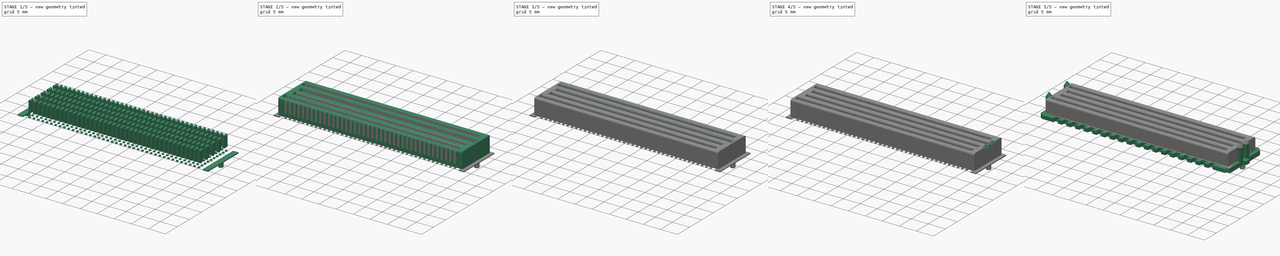
[diagram: build sequence overview — one tinted view per stage of 5, left to right]
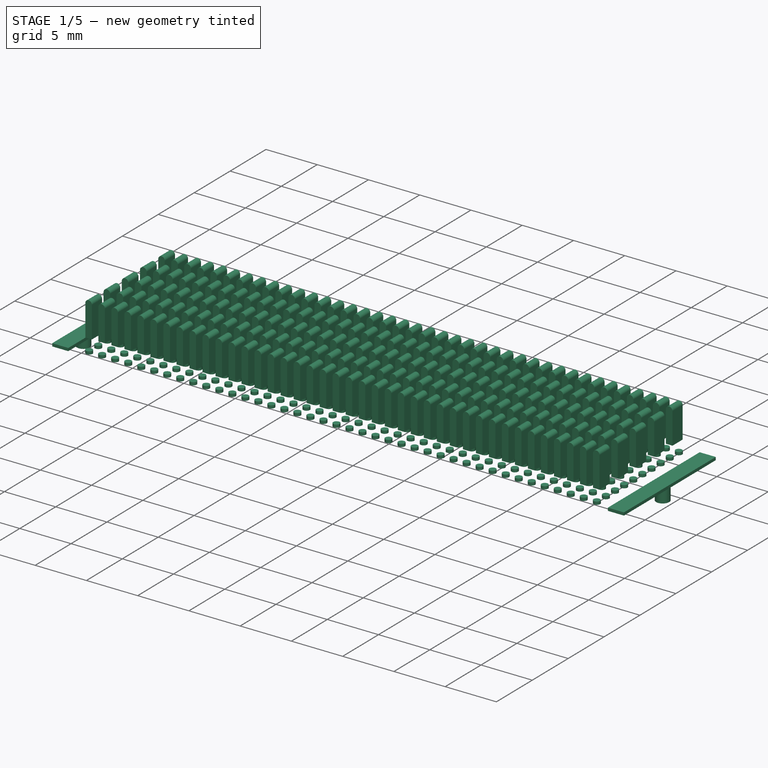
[diagram: stage 1 of 5 — iso view after this stage's code; geometry added in this stage tinted green]
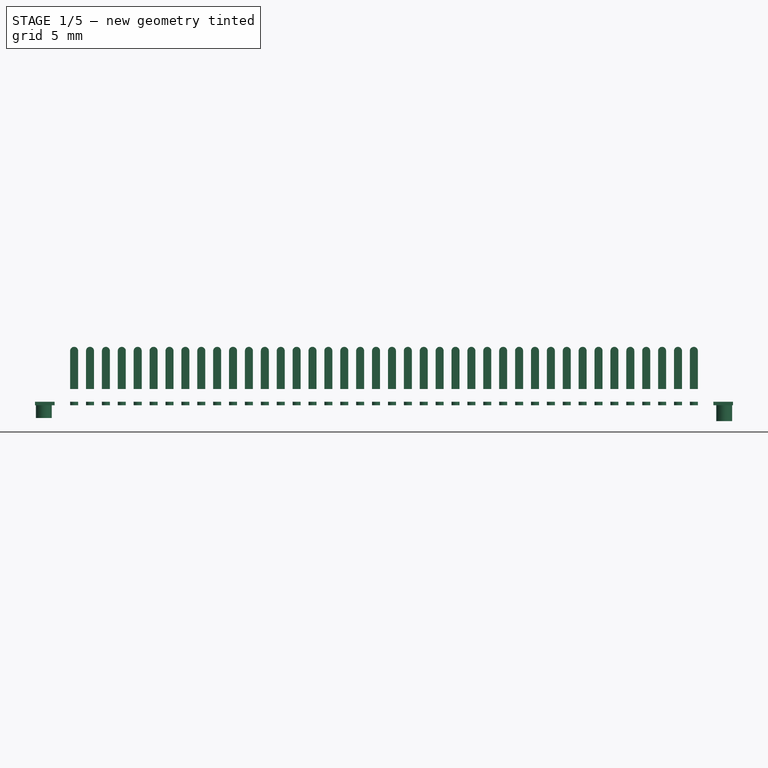
[diagram: stage 1 of 5 — front view after this stage's code; geometry added in this stage tinted green]
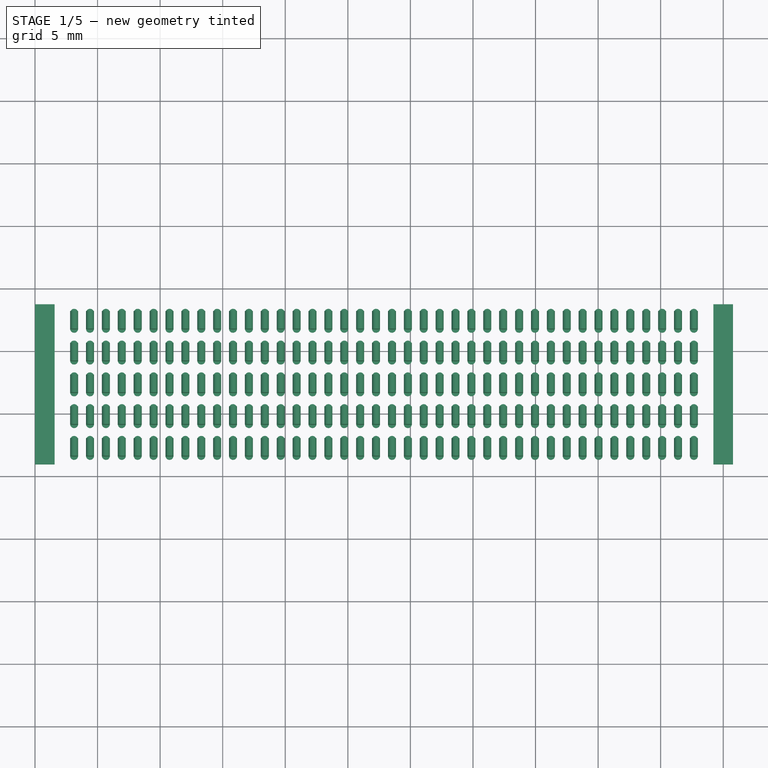
[diagram: stage 1 of 5 — top view after this stage's code; geometry added in this stage tinted green]
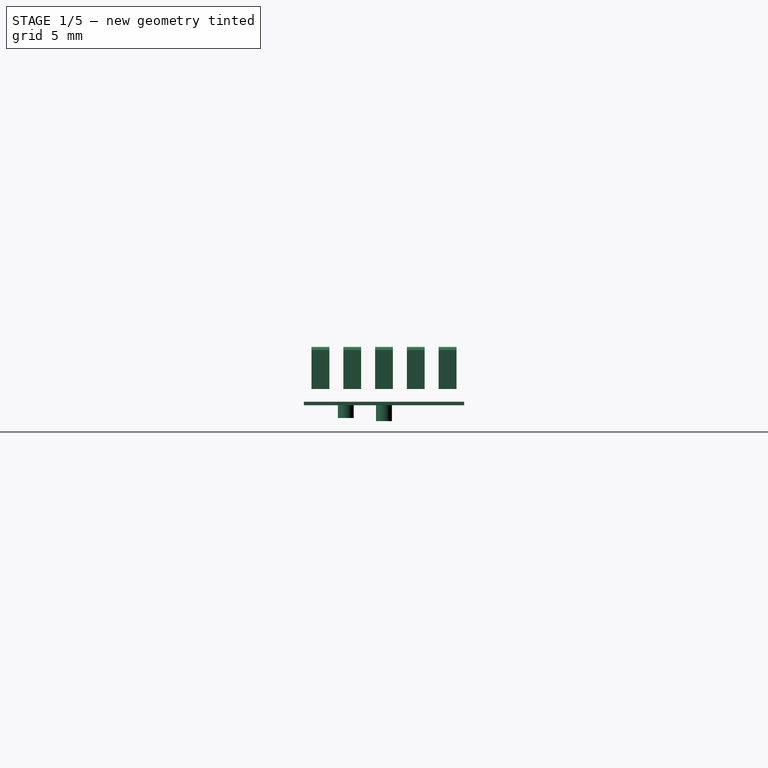
[diagram: stage 1 of 5 — right view after this stage's code; geometry added in this stage tinted green]
FCSTD DOCUMENT  (FreeCAD 0.15R4671 (Git))
Label: ASP-134602-01
License: All rights reserved
LicenseURL: http://en.wikipedia.org/wiki/All_rights_reserved
objects: PartDesign::Fillet×18, Sketcher::SketchObject×11, PartDesign::Pad×9, Part::Wedge×4, PartDesign::Pocket×2, Part::FeaturePython×2, Part::Feature×1
note: 58 computed .brp shape members not serialized (recipe doc carries the construction recipe); baked Part::Feature solids carry a one-line shape summary decoded from their .brp

FEATURE [Sketcher::SketchObject] Sketch006
  sketch-geometry (1):
    g0: Circle CenterX=3.125 CenterY=1.625 CenterZ=0 NormalX=0 NormalY=0 NormalZ=1 Radius=0.32
  constraints (3):
    c: Radius(g0) = 0.32
    c: DistanceY(g-1,g0) = 1.625
    c: DistanceX(g-2,g0) = 3.125
FEATURE [PartDesign::Pad] Pad004
  Length = 0.28
  Length2 = 100
  Sketch = -> Sketch006
  Type = 0
FEATURE [Part::FeaturePython] Array  label="ArrayPads"  # Draft array (typed FeaturePython)
  Angle = 360
  ArrayType = 0
  Axis = (0,0,1)
  Base = -> Pad004
  Center = (0,0,0)
  Fuse = false
  IntervalAxis = (0,0,0)
  IntervalX = (1.27,0,0)
  IntervalY = (0,1.27,0)
  IntervalZ = (0,0,0)
  NumberPolar = 1
  NumberX = 40
  NumberY = 10
  NumberZ = 1
FEATURE [Sketcher::SketchObject] Sketch007
  Placement = pos=(0,1.55,0) rot=(1,0,0;1.5708rad)
  sketch-geometry (5):
    g0: LineSegment StartX=2.805 StartY=4.35 StartZ=0 EndX=2.805 EndY=1.3 EndZ=0
    g1: LineSegment StartX=2.805 StartY=1.3 StartZ=0 EndX=3.445 EndY=1.3 EndZ=0
    g2: LineSegment StartX=3.445 StartY=1.3 StartZ=0 EndX=3.445 EndY=4.35 EndZ=0
    g3: LineSegment [constr] StartX=2.805 StartY=4.35 StartZ=0 EndX=3.125 EndY=4.35 EndZ=0
    g4: ArcOfCircle CenterX=3.125 CenterY=4.35 CenterZ=0 NormalX=0 NormalY=0 NormalZ=1 Radius=0.32 StartAngle=0 EndAngle=3.14159
  constraints (16):
    c: Vertical(g0)
    c: Coincident(g0,g1)
    c: Horizontal(g1)
    c: Coincident(g1,g2)
    c: Vertical(g2)
    c: Equal(g0,g2)
    c: Distance(g1) = 0.64
    c: DistanceX(g-2,g0) = 2.805
    c: DistanceY(g-1,g0) = 1.3
    c: Coincident(g3,g0)
    c: Perpendicular(g0,g3)
    c: Distance(g3) = 0.32
    c: Coincident(g4,g3)
    c: Coincident(g4,g2)
    c: Coincident(g4,g0)
    c: Distance(g2) = 3.05
FEATURE [PartDesign::Pad] Pad005
  Length = 1.42
  Length2 = 100
  Placement = pos=(0,1.55,0) rot=(1,0,0;1.5708rad)
  Reversed = true
  Sketch = -> Sketch007
  Type = 0
FEATURE [Part::FeaturePython] Array001  label="ArrayPins"  # Draft array (typed FeaturePython)
  Angle = 360
  ArrayType = 0
  Axis = (0,0,1)
  Base = -> Pad005
  Center = (0,0,0)
  Fuse = false
  IntervalAxis = (0,0,0)
  IntervalX = (1.27,0,0)
  IntervalY = (0,2.54,0)
  IntervalZ = (0,0,0)
  NumberPolar = 1
  NumberX = 40
  NumberY = 5
  NumberZ = 1
FEATURE [Sketcher::SketchObject] Sketch008
  sketch-geometry (1):
    g0: Circle CenterX=0.7 CenterY=4.29 CenterZ=0 NormalX=0 NormalY=0 NormalZ=1 Radius=0.635
  constraints (3):
    c: Radius(g0) = 0.635
    c: DistanceX(g-2,g0) = 0.7
    c: DistanceY(g-1,g0) = 4.29
FEATURE [Sketcher::SketchObject] Sketch009
  sketch-geometry (1):
    g0: Circle CenterX=55.08 CenterY=7.34 CenterZ=0 NormalX=0 NormalY=0 NormalZ=1 Radius=0.635
  constraints (3):
    c: Radius(g0) = 0.635
    c: DistanceX(g-2,g0) = 55.08
    c: DistanceY(g-1,g0) = 7.34
FEATURE [PartDesign::Pad] Pad006  label="PadShort"
  Length = 1.02
  Length2 = 100
  Reversed = true
  Sketch = -> Sketch008
  Type = 0
FEATURE [PartDesign::Pad] Pad007  label="PadLong"
  Length = 1.27
  Length2 = 100
  Reversed = true
  Sketch = -> Sketch009
  Type = 0
FEATURE [Sketcher::SketchObject] Sketch010
  sketch-geometry (8):
    g0: LineSegment StartX=1.57 StartY=13.74 StartZ=0 EndX=0 EndY=13.74 EndZ=0
    g1: LineSegment StartX=0 StartY=13.74 StartZ=0 EndX=0 EndY=0.94 EndZ=0
    g2: LineSegment StartX=0 StartY=0.94 StartZ=0 EndX=1.57 EndY=0.94 EndZ=0
    g3: LineSegment StartX=1.57 StartY=0.94 StartZ=0 EndX=1.57 EndY=13.74 EndZ=0
    g4: LineSegment StartX=54.21 StartY=13.74 StartZ=0 EndX=55.78 EndY=13.74 EndZ=0
    g5: LineSegment StartX=55.78 StartY=13.74 StartZ=0 EndX=55.78 EndY=0.94 EndZ=0
    g6: LineSegment StartX=55.78 StartY=0.94 StartZ=0 EndX=54.21 EndY=0.94 EndZ=0
    g7: LineSegment StartX=54.21 StartY=0.94 StartZ=0 EndX=54.21 EndY=13.74 EndZ=0
  constraints (24):
    c: Coincident(g0,g1)
    c: Coincident(g1,g2)
    c: Coincident(g2,g3)
    c: Coincident(g3,g0)
    c: Horizontal(g0)
    c: Horizontal(g2)
    c: Vertical(g1)
    c: Vertical(g3)
    c: PointOnObject(g0,g-2)
    c: Distance(g2) = 1.57
    c: Distance(g1) = 12.8
    c: Distance(g-1,g1) = 0.94
    c: Coincident(g4,g5)
    c: Coincident(g5,g6)
    c: Coincident(g6,g7)
    c: Coincident(g7,g4)
    c: Horizontal(g4)
    c: Horizontal(g6)
    c: Vertical(g5)
    c: Vertical(g7)
    c: Equal(g5,g1)
    c: Equal(g6,g2)
    c: DistanceY(g-1,g5) = 0.94
    c: DistanceX(g-2,g5) = 55.78
FEATURE [PartDesign::Pad] Pad008  label="Footing"
  Length = 0.28
  Length2 = 100
  Sketch = -> Sketch010
  Type = 0
FEATURE [Part::Feature] Shape001  label="ASP-134602-01"
  shape: bbox 14.68 x 56.67 x 7.24 mm, 3094 faces (baked)
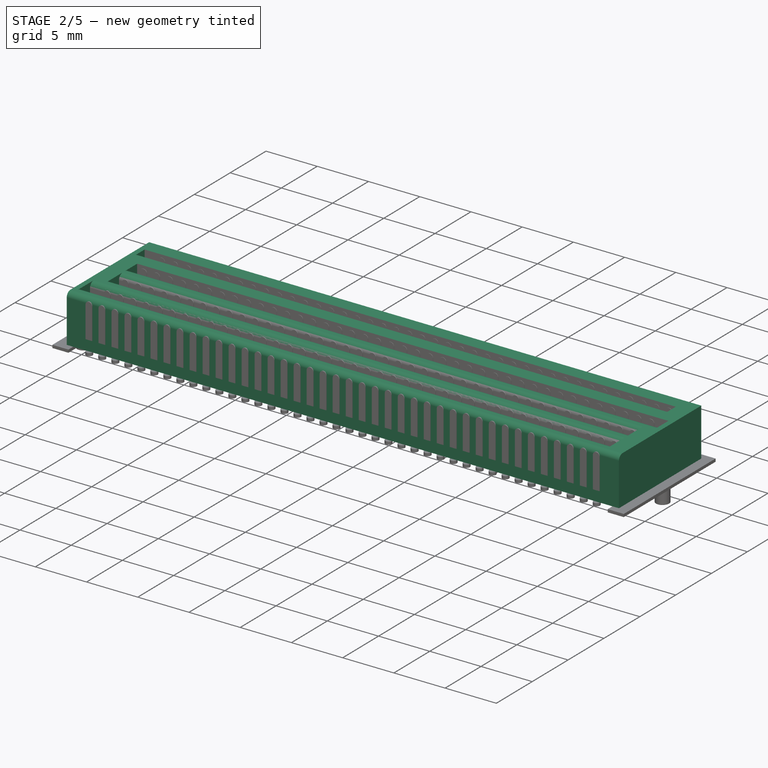
[diagram: stage 2 of 5 — iso view after this stage's code; geometry added in this stage tinted green]
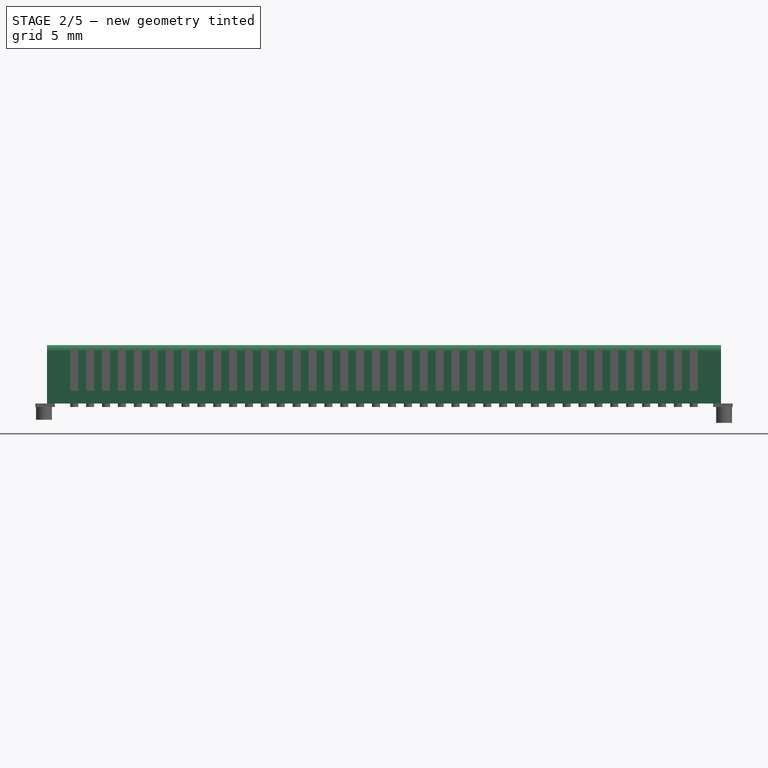
[diagram: stage 2 of 5 — front view after this stage's code; geometry added in this stage tinted green]
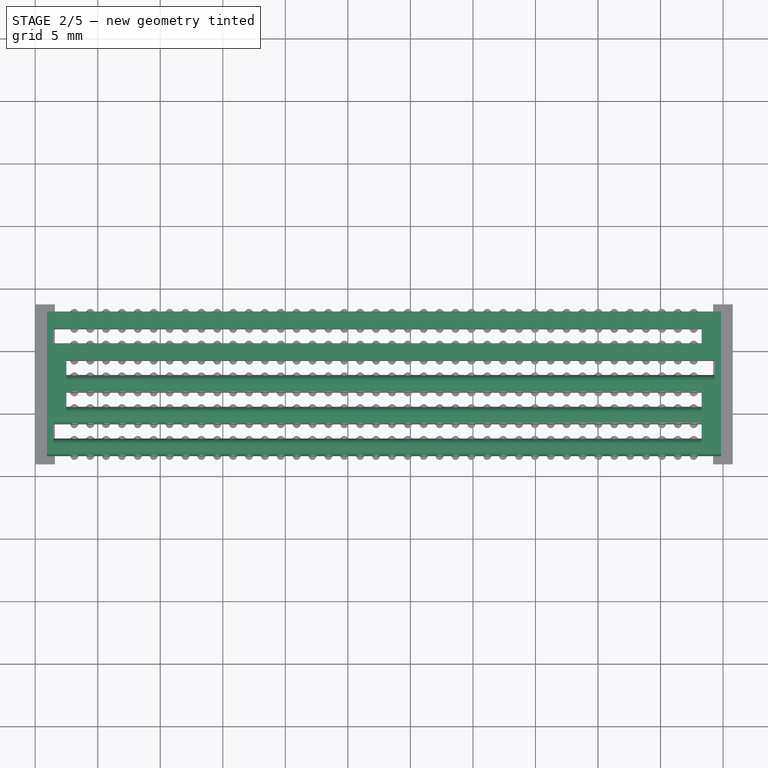
[diagram: stage 2 of 5 — top view after this stage's code; geometry added in this stage tinted green]
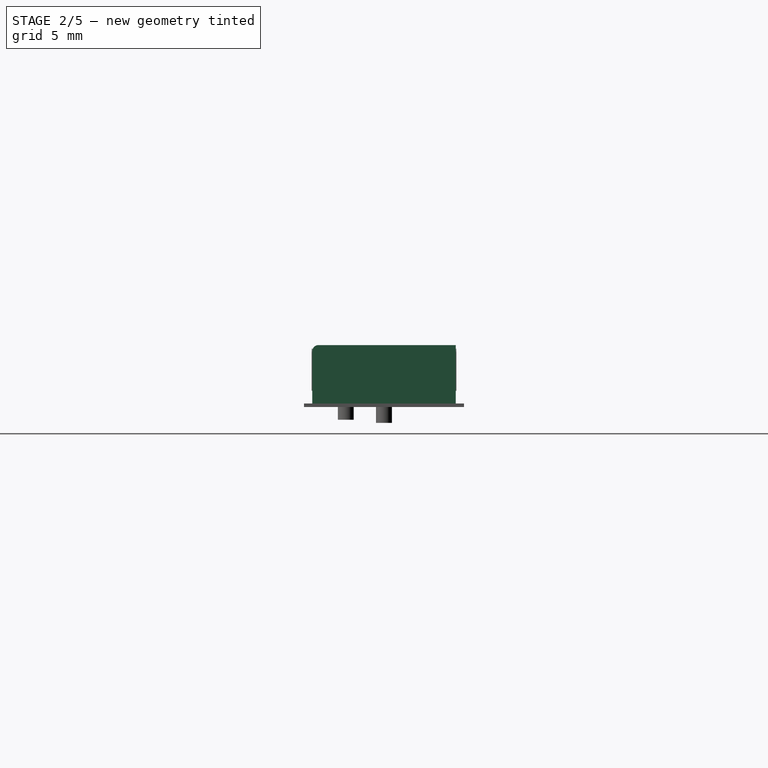
[diagram: stage 2 of 5 — right view after this stage's code; geometry added in this stage tinted green]
FEATURE [Sketcher::SketchObject] Sketch003
  Placement = pos=(0,0,0.28) rot=(0,0,1;0rad)
  sketch-geometry (33):
    g0: LineSegment StartX=0.94 StartY=1.6 StartZ=0 EndX=54.84 EndY=1.6 EndZ=0
    g1: LineSegment StartX=54.84 StartY=1.6 StartZ=0 EndX=54.84 EndY=13.08 EndZ=0
    g2: LineSegment StartX=54.84 StartY=13.08 StartZ=0 EndX=0.94 EndY=13.08 EndZ=0
    g3: LineSegment StartX=0.94 StartY=13.08 StartZ=0 EndX=0.94 EndY=1.6 EndZ=0
    g4: LineSegment StartX=1.44 StartY=11.7392 StartZ=0 EndX=53.29 EndY=11.7392 EndZ=0
    g5: LineSegment StartX=53.29 StartY=11.7392 StartZ=0 EndX=53.29 EndY=10.5452 EndZ=0
    g6: LineSegment StartX=53.29 StartY=10.5452 StartZ=0 EndX=1.44 EndY=10.5452 EndZ=0
    g7: LineSegment StartX=1.44 StartY=10.5452 StartZ=0 EndX=1.44 EndY=11.7392 EndZ=0
    g8: LineSegment StartX=2.49 StartY=9.2044 StartZ=0 EndX=54.34 EndY=9.2044 EndZ=0
    g9: LineSegment StartX=54.34 StartY=9.2044 StartZ=0 EndX=54.34 EndY=8.0104 EndZ=0
    g10: LineSegment StartX=54.34 StartY=8.0104 StartZ=0 EndX=2.49 EndY=8.0104 EndZ=0
    g11: LineSegment StartX=2.49 StartY=8.0104 StartZ=0 EndX=2.49 EndY=9.2044 EndZ=0
    g12: LineSegment StartX=2.49 StartY=6.6696 StartZ=0 EndX=53.29 EndY=6.6696 EndZ=0
    g13: LineSegment StartX=53.29 StartY=6.6696 StartZ=0 EndX=53.29 EndY=5.4756 EndZ=0
    g14: LineSegment StartX=53.29 StartY=5.4756 StartZ=0 EndX=2.49 EndY=5.4756 EndZ=0
    g15: LineSegment StartX=2.49 StartY=5.4756 StartZ=0 EndX=2.49 EndY=6.6696 EndZ=0
    g16: LineSegment StartX=1.44 StartY=4.1348 StartZ=0 EndX=53.29 EndY=4.1348 EndZ=0
    g17: LineSegment StartX=53.29 StartY=4.1348 StartZ=0 EndX=53.29 EndY=2.9408 EndZ=0
    g18: LineSegment StartX=53.29 StartY=2.9408 StartZ=0 EndX=1.44 EndY=2.9408 EndZ=0
    g19: LineSegment StartX=1.44 StartY=2.9408 StartZ=0 EndX=1.44 EndY=4.1348 EndZ=0
    g20: LineSegment [constr] StartX=34.0141 StartY=13.08 StartZ=0 EndX=34.0141 EndY=11.7392 EndZ=0
    g21: LineSegment [constr] StartX=34.0272 StartY=10.5452 StartZ=0 EndX=34.0272 EndY=9.2044 EndZ=0
    g22: LineSegment [constr] StartX=34.1218 StartY=8.0104 StartZ=0 EndX=34.1218 EndY=6.6696 EndZ=0
    g23: LineSegment [constr] StartX=34.1218 StartY=5.4756 StartZ=0 EndX=34.1218 EndY=4.1348 EndZ=0
    g24: LineSegment [constr] StartX=34.0902 StartY=2.9408 StartZ=0 EndX=34.0902 EndY=1.6 EndZ=0
    g25: LineSegment [constr] StartX=1.44 StartY=11.7392 StartZ=0 EndX=0.94 EndY=11.7392 EndZ=0
    g26: LineSegment [constr] StartX=1.44 StartY=2.9408 StartZ=0 EndX=0.94 EndY=2.9408 EndZ=0
    g27: LineSegment [constr] StartX=2.49 StartY=9.2044 StartZ=0 EndX=0.94 EndY=9.2044 EndZ=0
    g28: LineSegment [constr] StartX=2.49 StartY=5.4756 StartZ=0 EndX=0.94 EndY=5.4756 EndZ=0
    g29: LineSegment [constr] StartX=53.29 StartY=4.1348 StartZ=0 EndX=54.84 EndY=4.1348 EndZ=0
    g30: LineSegment [constr] StartX=53.29 StartY=6.6696 StartZ=0 EndX=54.84 EndY=6.6696 EndZ=0
    g31: LineSegment [constr] StartX=53.29 StartY=11.7392 StartZ=0 EndX=54.84 EndY=11.7392 EndZ=0
    g32: LineSegment [constr] StartX=54.34 StartY=8.0104 StartZ=0 EndX=54.84 EndY=8.0104 EndZ=0
  constraints (100):
    c: Coincident(g0,g1)
    c: Coincident(g1,g2)
    c: Coincident(g2,g3)
    c: Coincident(g3,g0)
    c: Horizontal(g0)
    c: Horizontal(g2)
    c: Vertical(g1)
    c: Vertical(g3)
    c: Distance(g1) = 11.48
    c: Distance(g0) = 53.9
    c: DistanceY(g-1,g0) = 1.6
    c: DistanceX(g-2,g0) = 0.94
    c: Coincident(g4,g5)
    c: Coincident(g5,g6)
    c: Coincident(g6,g7)
    c: Coincident(g7,g4)
    c: Horizontal(g4)
    c: Horizontal(g6)
    c: Vertical(g5)
    c: Vertical(g7)
    c: Distance(g5) = 1.194
    c: Coincident(g8,g9)
    c: Coincident(g9,g10)
    c: Coincident(g10,g11)
    c: Coincident(g11,g8)
    c: Horizontal(g8)
    c: Horizontal(g10)
    c: Vertical(g9)
    c: Vertical(g11)
    c: Coincident(g12,g13)
    c: Coincident(g13,g14)
    c: Coincident(g14,g15)
    c: Coincident(g15,g12)
    c: Horizontal(g12)
    c: Horizontal(g14)
    c: Vertical(g13)
    c: Vertical(g15)
    c: Coincident(g16,g17)
    c: Coincident(g17,g18)
    c: Coincident(g18,g19)
    c: Coincident(g19,g16)
    c: Horizontal(g16)
    c: Horizontal(g18)
    c: Vertical(g17)
    c: Vertical(g19)
    c: Equal(g9,g5)
    c: Equal(g13,g9)
    c: Equal(g17,g13)
    c: PointOnObject(g20,g2)
    c: PointOnObject(g20,g4)
    c: Vertical(g20)
    c: PointOnObject(g21,g6)
    c: PointOnObject(g21,g8)
    c: Vertical(g21)
    c: PointOnObject(g22,g10)
    c: PointOnObject(g22,g12)
    c: Vertical(g22)
    c: PointOnObject(g23,g14)
    c: PointOnObject(g23,g16)
    c: Vertical(g23)
    c: PointOnObject(g24,g18)
    c: PointOnObject(g24,g0)
    c: Vertical(g24)
    c: Equal(g21,g20)
    c: Equal(g20,g22)
    c: Equal(g22,g23)
    c: Equal(g23,g24)
    c: Equal(g4,g18)
    c: Coincident(g25,g4)
    c: PointOnObject(g25,g3)
    c: Horizontal(g25)
    c: Coincident(g26,g18)
    c: PointOnObject(g26,g3)
    c: Perpendicular(g3,g26)
    c: Equal(g25,g26)
    c: Coincident(g27,g8)
    c: PointOnObject(g27,g3)
    c: Horizontal(g27)
    c: Coincident(g28,g14)
    c: PointOnObject(g28,g3)
    c: Horizontal(g28)
    c: Equal(g27,g28)
    c: Coincident(g29,g16)
    c: PointOnObject(g29,g1)
    c: Horizontal(g29)
    c: Coincident(g30,g12)
    c: PointOnObject(g30,g1)
    c: Horizontal(g30)
    c: Coincident(g31,g4)
    c: PointOnObject(g31,g1)
    c: Horizontal(g31)
    c: Equal(g31,g30)
    c: Equal(g30,g29)
    c: Distance(g27) = 1.55
    c: Equal(g29,g28)
    c: Coincident(g32,g9)
    c: PointOnObject(g32,g1)
    c: Horizontal(g32)
    c: Equal(g26,g32)
    c: Distance(g32) = 0.5
FEATURE [PartDesign::Pad] Pad001  label="Walls"
  Length = 4.67
  Length2 = 100
  Placement = pos=(0,0,0.28) rot=(0,0,1;0rad)
  Sketch = -> Sketch003
  Type = 0
FEATURE [PartDesign::Fillet] Fillet
  Base = -> Pad001 [Edge4]
  Placement = pos=(0,0,0.28) rot=(0,0,1;0rad)
  Radius = 0.5
FEATURE [PartDesign::Fillet] Fillet001
  Base = -> Fillet [Edge38]
  Placement = pos=(0,0,0.28) rot=(0,0,1;0rad)
  Radius = 0.5
FEATURE [PartDesign::Fillet] Fillet002
  Base = -> Fillet001 [Edge4]
  Placement = pos=(0,0,0.28) rot=(0,0,1;0rad)
  Radius = 0.5
FEATURE [PartDesign::Fillet] Fillet003
  Base = -> Fillet002 [Edge23]
  Placement = pos=(0,0,0.28) rot=(0,0,1;0rad)
  Radius = 0.5
FEATURE [PartDesign::Fillet] Fillet004
  Base = -> Fillet003 [Edge4]
  Placement = pos=(0,0,0.28) rot=(0,0,1;0rad)
  Radius = 0.5
FEATURE [PartDesign::Fillet] Fillet005
  Base = -> Fillet004 [Edge27]
  Placement = pos=(0,0,0.28) rot=(0,0,1;0rad)
  Radius = 0.5
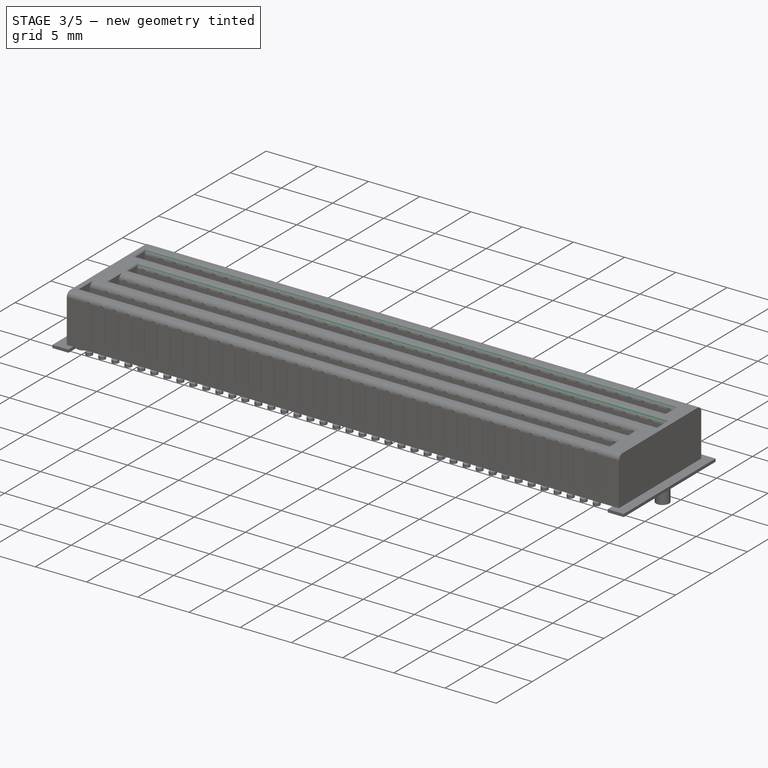
[diagram: stage 3 of 5 — iso view after this stage's code; geometry added in this stage tinted green]
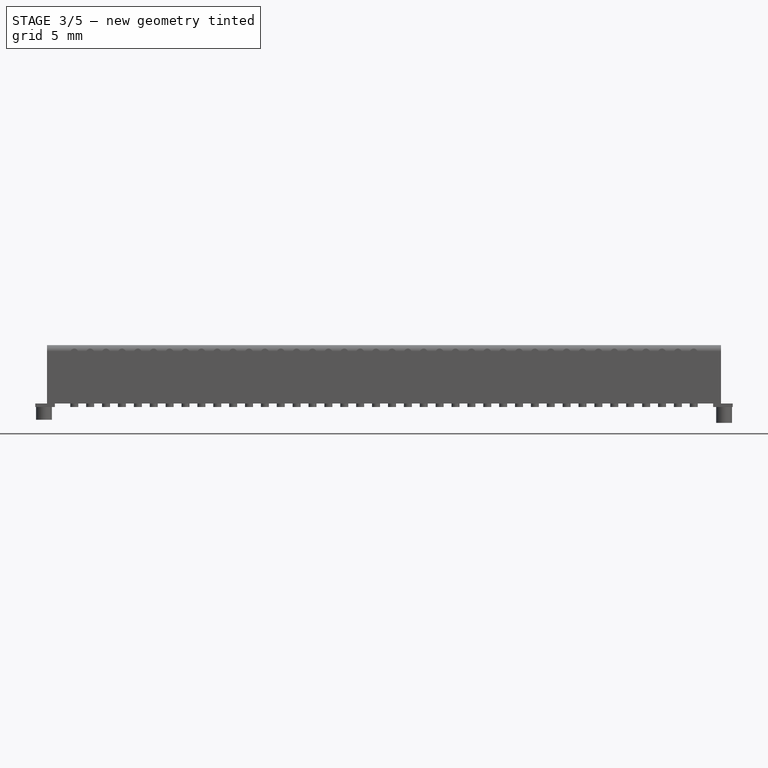
[diagram: stage 3 of 5 — front view after this stage's code; geometry added in this stage tinted green]
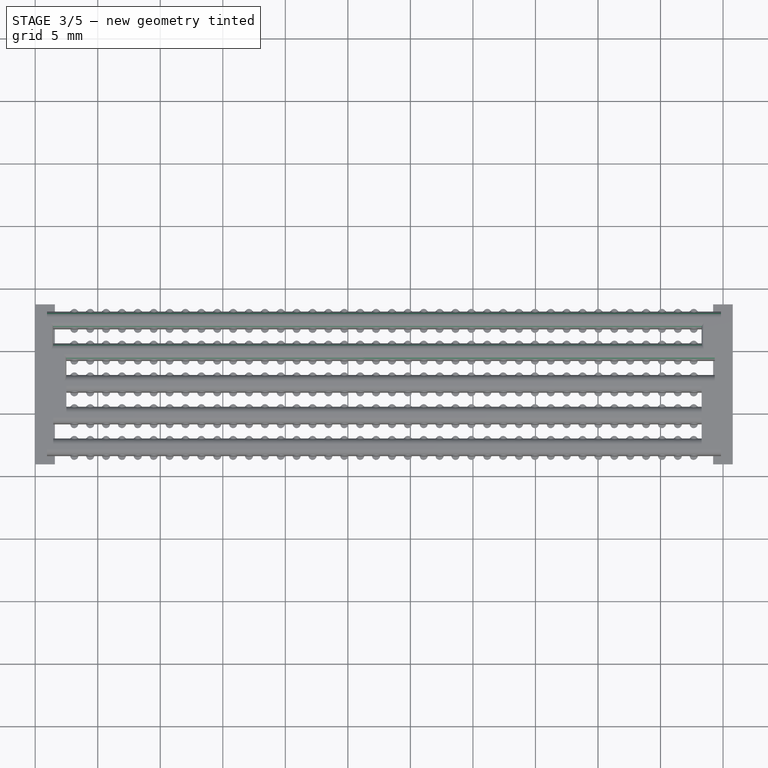
[diagram: stage 3 of 5 — top view after this stage's code; geometry added in this stage tinted green]
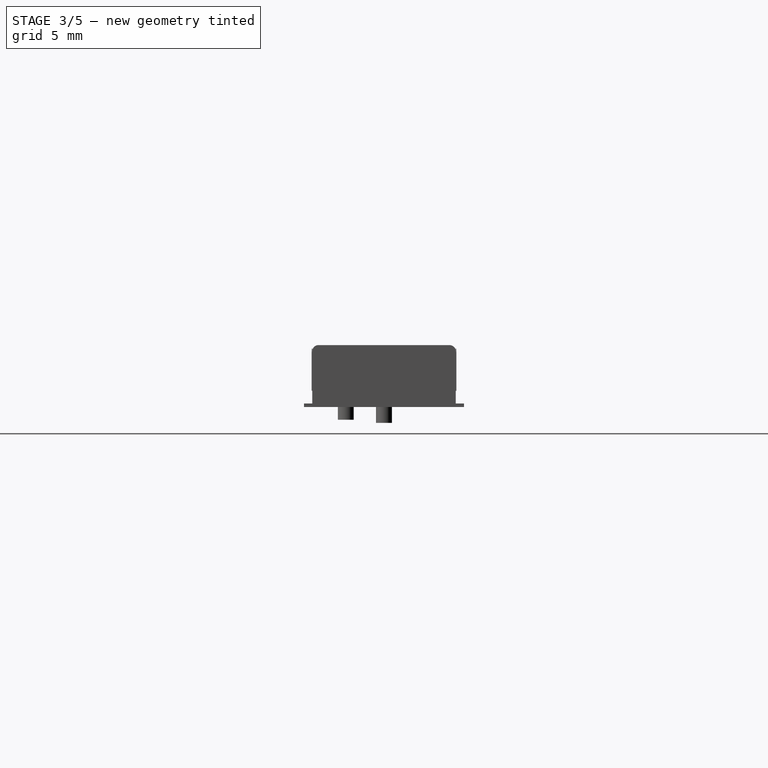
[diagram: stage 3 of 5 — right view after this stage's code; geometry added in this stage tinted green]
FEATURE [PartDesign::Fillet] Fillet006
  Base = -> Fillet005 [Edge4]
  Placement = pos=(0,0,0.28) rot=(0,0,1;0rad)
  Radius = 0.5
FEATURE [PartDesign::Fillet] Fillet007
  Base = -> Fillet006 [Edge31]
  Placement = pos=(0,0,0.28) rot=(0,0,1;0rad)
  Radius = 0.5
FEATURE [PartDesign::Fillet] Fillet008
  Base = -> Fillet007 [Edge4]
  Placement = pos=(0,0,0.28) rot=(0,0,1;0rad)
  Radius = 0.5
FEATURE [PartDesign::Fillet] Fillet009
  Base = -> Fillet008 [Edge35]
  Placement = pos=(0,0,0.28) rot=(0,0,1;0rad)
  Radius = 0.5
FEATURE [PartDesign::Fillet] Fillet010
  Base = -> Fillet009 [Edge11]
  Placement = pos=(0,0,0.28) rot=(0,0,1;0rad)
  Radius = 0.2
FEATURE [PartDesign::Fillet] Fillet011
  Base = -> Fillet010 [Edge6]
  Placement = pos=(0,0,0.28) rot=(0,0,1;0rad)
  Radius = 0.2
FEATURE [PartDesign::Fillet] Fillet012
  Base = -> Fillet011 [Edge18]
  Placement = pos=(0,0,0.28) rot=(0,0,1;0rad)
  Radius = 0.2
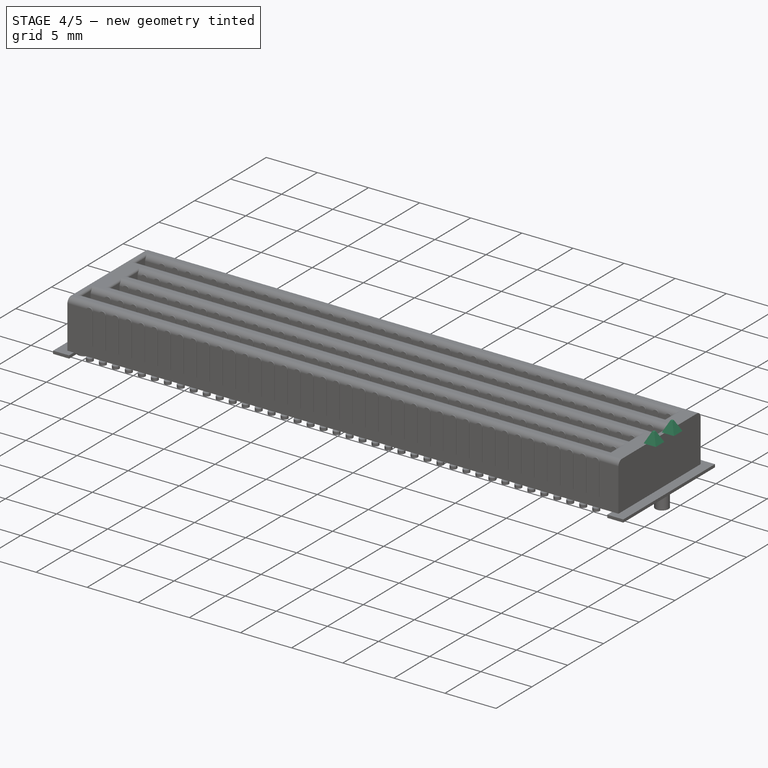
[diagram: stage 4 of 5 — iso view after this stage's code; geometry added in this stage tinted green]
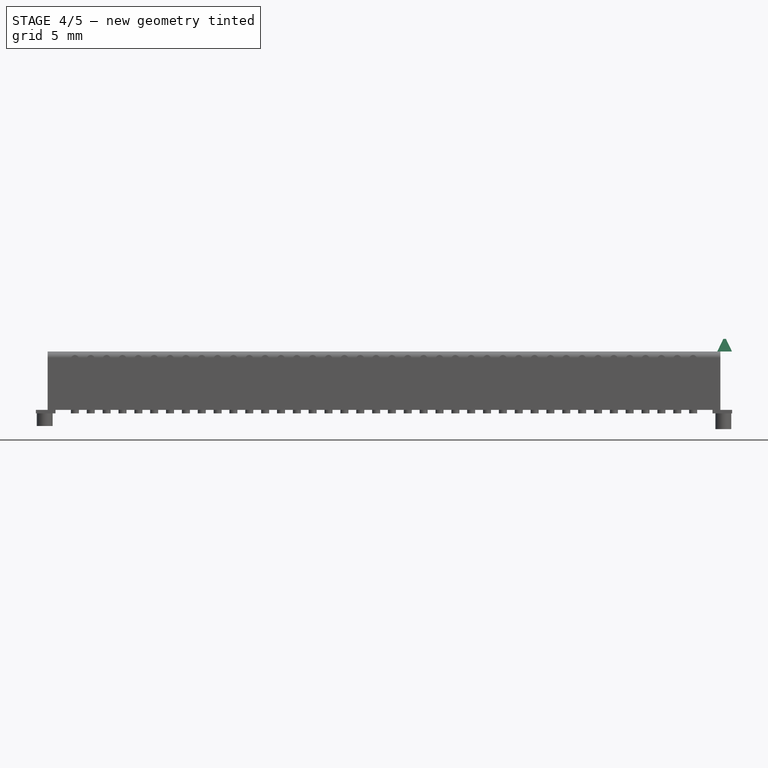
[diagram: stage 4 of 5 — front view after this stage's code; geometry added in this stage tinted green]
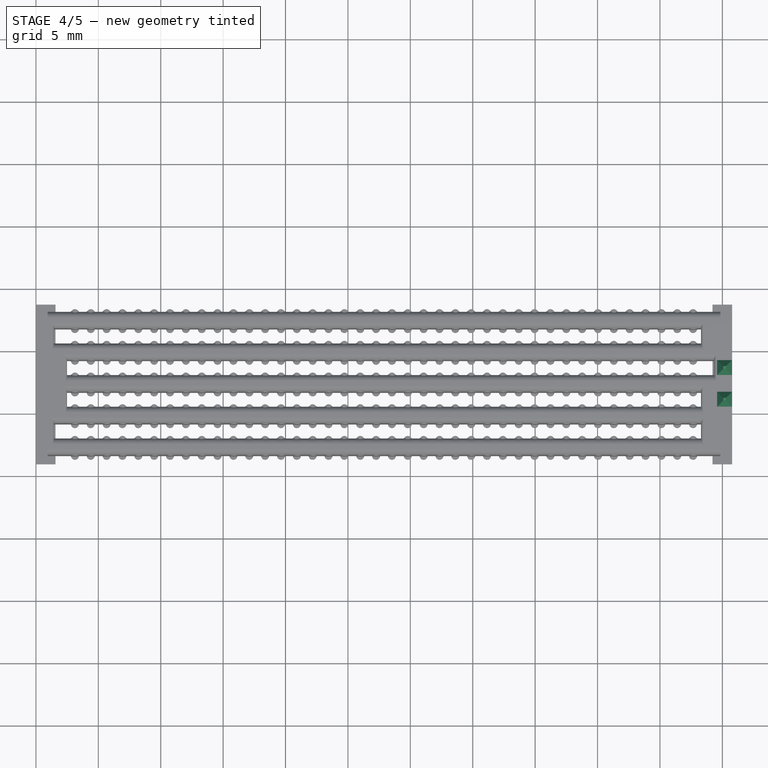
[diagram: stage 4 of 5 — top view after this stage's code; geometry added in this stage tinted green]
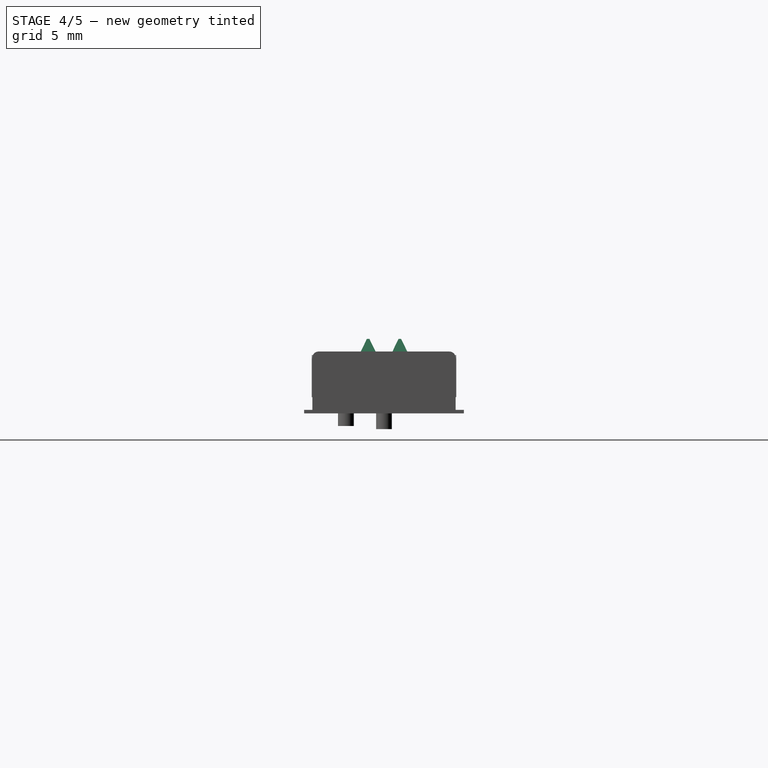
[diagram: stage 4 of 5 — right view after this stage's code; geometry added in this stage tinted green]
FEATURE [Part::Wedge] Wedge003  label="Top3"
  Placement = pos=(54.586,6.6696,4.95) rot=(1,0,0;1.5708rad)
  X2max = 0.7
  X2min = 0.5
  Xmax = 1.19
  Xmin = 0
  Ymax = 1.02
  Ymin = 0
  Z2max = 0.7
  Z2min = 0.5
  Zmax = 1.19
  Zmin = 0
FEATURE [Part::Wedge] Wedge004  label="Top4"
  Placement = pos=(54.586,9.2044,4.95) rot=(1,0,0;1.5708rad)
  X2max = 0.7
  X2min = 0.5
  Xmax = 1.19
  Xmin = 0
  Ymax = 1.02
  Ymin = 0
  Z2max = 0.7
  Z2min = 0.5
  Zmax = 1.19
  Zmin = 0
FEATURE [PartDesign::Fillet] Fillet013
  Base = -> Fillet012 [Edge6]
  Placement = pos=(0,0,0.28) rot=(0,0,1;0rad)
  Radius = 0.2
FEATURE [PartDesign::Fillet] Fillet014
  Base = -> Fillet013 [Edge30]
  Placement = pos=(0,0,0.28) rot=(0,0,1;0rad)
  Radius = 0.2
FEATURE [PartDesign::Fillet] Fillet015
  Base = -> Fillet014 [Edge38]
  Placement = pos=(0,0,0.28) rot=(0,0,1;0rad)
  Radius = 0.2
FEATURE [PartDesign::Fillet] Fillet016
  Base = -> Fillet015 [Edge6]
  Placement = pos=(0,0,0.28) rot=(0,0,1;0rad)
  Radius = 0.2
FEATURE [PartDesign::Fillet] Fillet017
  Base = -> Fillet016 [Edge14]
  Placement = pos=(0,0,0.28) rot=(0,0,1;0rad)
  Radius = 0.19
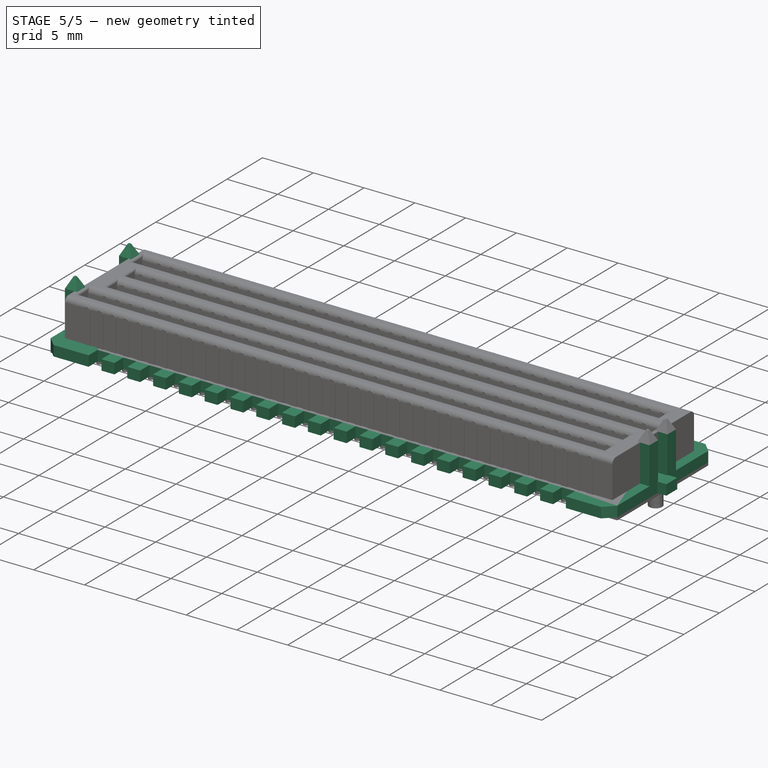
[diagram: stage 5 of 5 — iso view after this stage's code; geometry added in this stage tinted green]
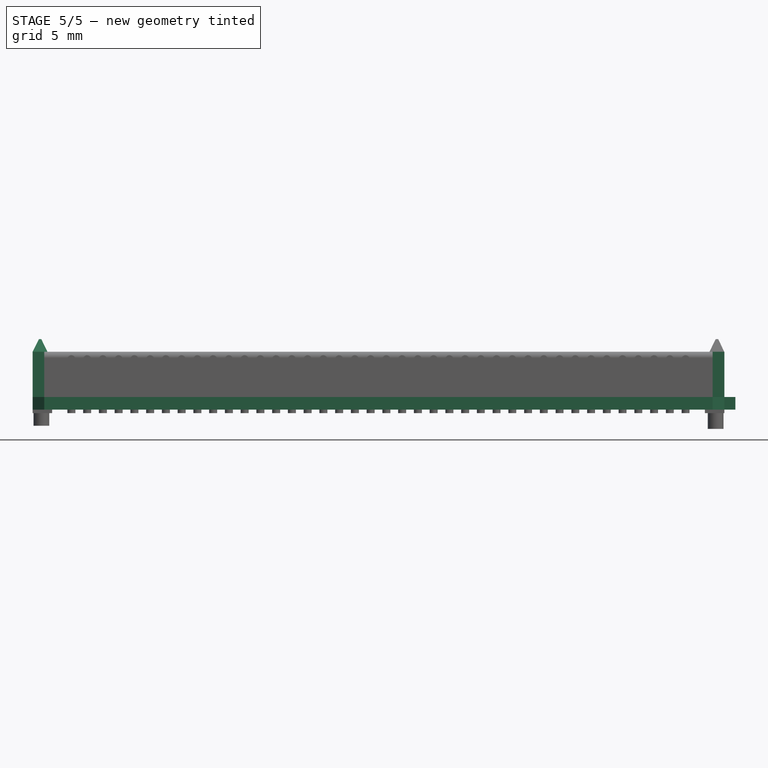
[diagram: stage 5 of 5 — front view after this stage's code; geometry added in this stage tinted green]
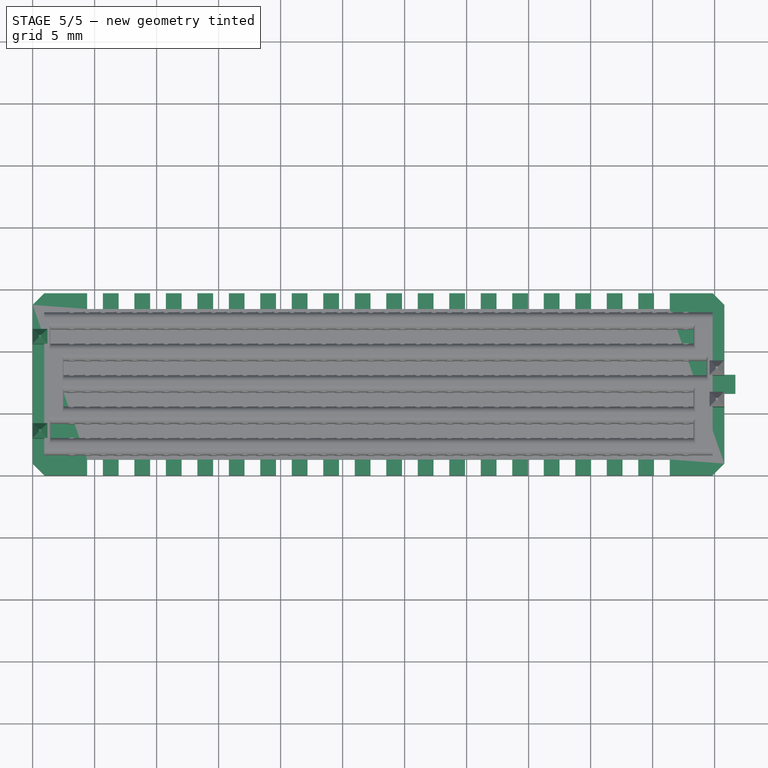
[diagram: stage 5 of 5 — top view after this stage's code; geometry added in this stage tinted green]
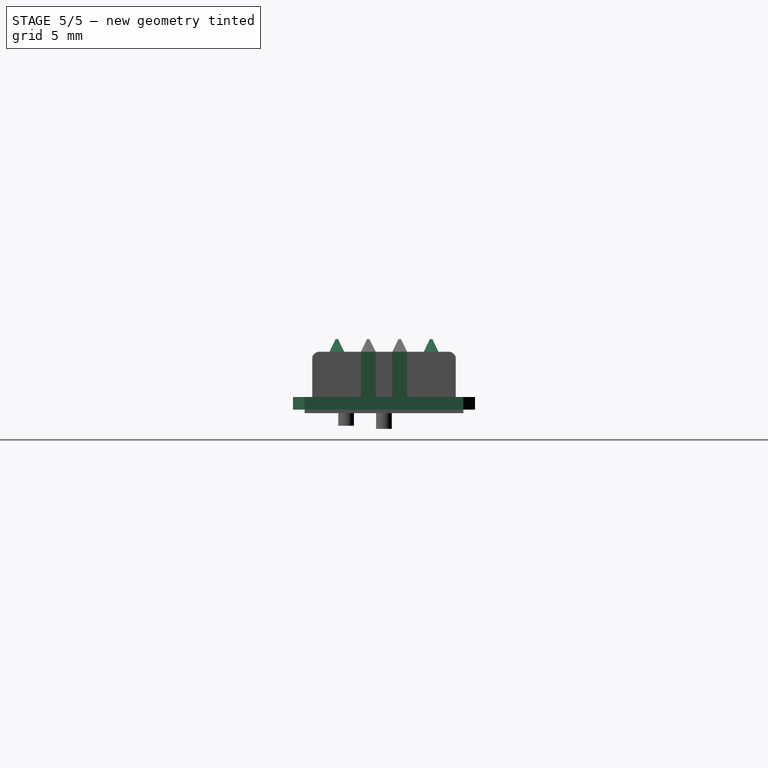
[diagram: stage 5 of 5 — right view after this stage's code; geometry added in this stage tinted green]
FEATURE [Sketcher::SketchObject] Sketch
  Placement = pos=(0,0,0.28) rot=(0,0,1;0rad)
  sketch-geometry (8):
    g0: LineSegment StartX=0 StartY=0.94 StartZ=0 EndX=0.94 EndY=0 EndZ=0
    g1: LineSegment StartX=0.94 StartY=0 StartZ=0 EndX=54.84 EndY=0 EndZ=0
    g2: LineSegment StartX=54.84 StartY=0 StartZ=0 EndX=55.78 EndY=0.94 EndZ=0
    g3: LineSegment StartX=55.78 StartY=0.94 StartZ=0 EndX=55.78 EndY=13.74 EndZ=0
    g4: LineSegment StartX=55.78 StartY=13.74 StartZ=0 EndX=54.84 EndY=14.68 EndZ=0
    g5: LineSegment StartX=54.84 StartY=14.68 StartZ=0 EndX=0.94 EndY=14.68 EndZ=0
    g6: LineSegment StartX=0.94 StartY=14.68 StartZ=0 EndX=0 EndY=13.74 EndZ=0
    g7: LineSegment StartX=0 StartY=13.74 StartZ=0 EndX=0 EndY=0.94 EndZ=0
  constraints (24):
    c: PointOnObject(g0,g-2)
    c: PointOnObject(g0,g-1)
    c: Coincident(g0,g1)
    c: Horizontal(g1)
    c: Coincident(g1,g2)
    c: Coincident(g2,g3)
    c: Vertical(g3)
    c: Coincident(g3,g4)
    c: Coincident(g4,g5)
    c: Horizontal(g5)
    c: Coincident(g5,g6)
    c: PointOnObject(g6,g-2)
    c: Coincident(g6,g7)
    c: Coincident(g7,g0)
    c: Angle(g0,g-1) = 0.785398
    c: Distance(g1) = 53.9
    c: Equal(g5,g1)
    c: Equal(g7,g3)
    c: Equal(g0,g6)
    c: Equal(g6,g4)
    c: Equal(g4,g2)
    c: Perpendicular(g0,g6)
    c: Distance(g5,g0) = 14.68
    c: Distance(g6,g3) = 55.78
FEATURE [PartDesign::Pad] Pad  label="Base"
  Length = 1.02
  Length2 = 100
  Placement = pos=(0,0,0.28) rot=(0,0,1;0rad)
  Sketch = -> Sketch
  Type = 0
FEATURE [Sketcher::SketchObject] Sketch001  label="SketchS1"
  Placement = pos=(0,0,0.28) rot=(1,0,0;1.5708rad)
  Support = -> Pad [Face2]
  sketch-geometry (76):
    g0: LineSegment StartX=5.66 StartY=0 StartZ=0 EndX=4.39 EndY=0 EndZ=0
    g1: LineSegment StartX=4.39 StartY=0 StartZ=0 EndX=4.39 EndY=1.07 EndZ=0
    g2: LineSegment StartX=4.39 StartY=1.07 StartZ=0 EndX=5.66 EndY=1.07 EndZ=0
    g3: LineSegment StartX=5.66 StartY=1.07 StartZ=0 EndX=5.66 EndY=0 EndZ=0
    g4: LineSegment StartX=6.93 StartY=0 StartZ=0 EndX=8.2 EndY=0 EndZ=0
    g5: LineSegment StartX=8.2 StartY=0 StartZ=0 EndX=8.2 EndY=1.07 EndZ=0
    g6: LineSegment StartX=8.2 StartY=1.07 StartZ=0 EndX=6.93 EndY=1.07 EndZ=0
    g7: LineSegment StartX=6.93 StartY=1.07 StartZ=0 EndX=6.93 EndY=0 EndZ=0
    g8: LineSegment StartX=9.47 StartY=0 StartZ=0 EndX=10.74 EndY=0 EndZ=0
    g9: LineSegment StartX=10.74 StartY=0 StartZ=0 EndX=10.74 EndY=1.07 EndZ=0
    g10: LineSegment StartX=10.74 StartY=1.07 StartZ=0 EndX=9.47 EndY=1.07 EndZ=0
    g11: LineSegment StartX=9.47 StartY=1.07 StartZ=0 EndX=9.47 EndY=0 EndZ=0
    g12: LineSegment StartX=12.01 StartY=-0.00737 StartZ=0 EndX=13.28 EndY=-0.00737 EndZ=0
    g13: LineSegment StartX=13.28 StartY=-0.00737 StartZ=0 EndX=13.28 EndY=1.06263 EndZ=0
    g14: LineSegment StartX=13.28 StartY=1.06263 StartZ=0 EndX=12.01 EndY=1.06263 EndZ=0
    g15: LineSegment StartX=12.01 StartY=1.06263 StartZ=0 EndX=12.01 EndY=-0.00737 EndZ=0
    g16: LineSegment StartX=14.55 StartY=0 StartZ=0 EndX=15.82 EndY=0 EndZ=0
    g17: LineSegment StartX=15.82 StartY=0 StartZ=0 EndX=15.82 EndY=1.07 EndZ=0
    g18: LineSegment StartX=15.82 StartY=1.07 StartZ=0 EndX=14.55 EndY=1.07 EndZ=0
    g19: LineSegment StartX=14.55 StartY=1.07 StartZ=0 EndX=14.55 EndY=0 EndZ=0
    g20: LineSegment StartX=17.09 StartY=0 StartZ=0 EndX=18.36 EndY=0 EndZ=0
    g21: LineSegment StartX=18.36 StartY=0 StartZ=0 EndX=18.36 EndY=1.07 EndZ=0
    g22: LineSegment StartX=18.36 StartY=1.07 StartZ=0 EndX=17.09 EndY=1.07 EndZ=0
    g23: LineSegment StartX=17.09 StartY=1.07 StartZ=0 EndX=17.09 EndY=0 EndZ=0
    g24: LineSegment StartX=19.63 StartY=0 StartZ=0 EndX=20.9 EndY=0 EndZ=0
    g25: LineSegment StartX=20.9 StartY=0 StartZ=0 EndX=20.9 EndY=1.07 EndZ=0
    g26: LineSegment StartX=20.9 StartY=1.07 StartZ=0 EndX=19.63 EndY=1.07 EndZ=0
    g27: LineSegment StartX=19.63 StartY=1.07 StartZ=0 EndX=19.63 EndY=0 EndZ=0
    g28: LineSegment StartX=22.17 StartY=0 StartZ=0 EndX=23.44 EndY=0 EndZ=0
    g29: LineSegment StartX=23.44 StartY=0 StartZ=0 EndX=23.44 EndY=1.07 EndZ=0
    g30: LineSegment StartX=23.44 StartY=1.07 StartZ=0 EndX=22.17 EndY=1.07 EndZ=0
    g31: LineSegment StartX=22.17 StartY=1.07 StartZ=0 EndX=22.17 EndY=0 EndZ=0
    g32: LineSegment StartX=24.71 StartY=0 StartZ=0 EndX=25.98 EndY=0 EndZ=0
    g33: LineSegment StartX=25.98 StartY=0 StartZ=0 EndX=25.98 EndY=1.07 EndZ=0
    g34: LineSegment StartX=25.98 StartY=1.07 StartZ=0 EndX=24.71 EndY=1.07 EndZ=0
    g35: LineSegment StartX=24.71 StartY=1.07 StartZ=0 EndX=24.71 EndY=0 EndZ=0
    g36: LineSegment StartX=27.25 StartY=0 StartZ=0 EndX=28.52 EndY=0 EndZ=0
    g37: LineSegment StartX=28.52 StartY=0 StartZ=0 EndX=28.52 EndY=1.07 EndZ=0
    g38: LineSegment StartX=28.52 StartY=1.07 StartZ=0 EndX=27.25 EndY=1.07 EndZ=0
    g39: LineSegment StartX=27.25 StartY=1.07 StartZ=0 EndX=27.25 EndY=0 EndZ=0
    g40: LineSegment StartX=29.79 StartY=0 StartZ=0 EndX=31.06 EndY=0 EndZ=0
    g41: LineSegment StartX=31.06 StartY=0 StartZ=0 EndX=31.06 EndY=1.07 EndZ=0
    g42: LineSegment StartX=31.06 StartY=1.07 StartZ=0 EndX=29.79 EndY=1.07 EndZ=0
    g43: LineSegment StartX=29.79 StartY=1.07 StartZ=0 EndX=29.79 EndY=0 EndZ=0
    g44: LineSegment StartX=32.33 StartY=0 StartZ=0 EndX=33.6 EndY=0 EndZ=0
    g45: LineSegment StartX=33.6 StartY=0 StartZ=0 EndX=33.6 EndY=1.07 EndZ=0
    g46: LineSegment StartX=33.6 StartY=1.07 StartZ=0 EndX=32.33 EndY=1.07 EndZ=0
    g47: LineSegment StartX=32.33 StartY=1.07 StartZ=0 EndX=32.33 EndY=0 EndZ=0
    g48: LineSegment StartX=34.87 StartY=0 StartZ=0 EndX=36.14 EndY=0 EndZ=0
    g49: LineSegment StartX=36.14 StartY=0 StartZ=0 EndX=36.14 EndY=1.07 EndZ=0
    g50: LineSegment StartX=36.14 StartY=1.07 StartZ=0 EndX=34.87 EndY=1.07 EndZ=0
    g51: LineSegment StartX=34.87 StartY=1.07 StartZ=0 EndX=34.87 EndY=0 EndZ=0
    g52: LineSegment StartX=37.41 StartY=0 StartZ=0 EndX=38.68 EndY=0 EndZ=0
    g53: LineSegment StartX=38.68 StartY=0 StartZ=0 EndX=38.68 EndY=1.07 EndZ=0
    g54: LineSegment StartX=38.68 StartY=1.07 StartZ=0 EndX=37.41 EndY=1.07 EndZ=0
    g55: LineSegment StartX=37.41 StartY=1.07 StartZ=0 EndX=37.41 EndY=0 EndZ=0
    g56: LineSegment StartX=39.95 StartY=0 StartZ=0 EndX=41.22 EndY=0 EndZ=0
    g57: LineSegment StartX=41.22 StartY=0 StartZ=0 EndX=41.22 EndY=1.07 EndZ=0
    g58: LineSegment StartX=41.22 StartY=1.07 StartZ=0 EndX=39.95 EndY=1.07 EndZ=0
    g59: LineSegment StartX=39.95 StartY=1.07 StartZ=0 EndX=39.95 EndY=0 EndZ=0
    g60: LineSegment StartX=42.49 StartY=0 StartZ=0 EndX=43.76 EndY=0 EndZ=0
    g61: LineSegment StartX=43.76 StartY=0 StartZ=0 EndX=43.76 EndY=1.07 EndZ=0
    g62: LineSegment StartX=43.76 StartY=1.07 StartZ=0 EndX=42.49 EndY=1.07 EndZ=0
    g63: LineSegment StartX=42.49 StartY=1.07 StartZ=0 EndX=42.49 EndY=0 EndZ=0
    g64: LineSegment StartX=45.03 StartY=0 StartZ=0 EndX=46.3 EndY=0 EndZ=0
    g65: LineSegment StartX=46.3 StartY=0 StartZ=0 EndX=46.3 EndY=1.07 EndZ=0
    g66: LineSegment StartX=46.3 StartY=1.07 StartZ=0 EndX=45.03 EndY=1.07 EndZ=0
    g67: LineSegment StartX=45.03 StartY=1.07 StartZ=0 EndX=45.03 EndY=0 EndZ=0
    g68: LineSegment StartX=47.57 StartY=0 StartZ=0 EndX=48.84 EndY=0 EndZ=0
    g69: LineSegment StartX=48.84 StartY=0 StartZ=0 EndX=48.84 EndY=1.07 EndZ=0
    g70: LineSegment StartX=48.84 StartY=1.07 StartZ=0 EndX=47.57 EndY=1.07 EndZ=0
    g71: LineSegment StartX=47.57 StartY=1.07 StartZ=0 EndX=47.57 EndY=0 EndZ=0
    g72: LineSegment StartX=50.11 StartY=0 StartZ=0 EndX=51.38 EndY=0 EndZ=0
    g73: LineSegment StartX=51.38 StartY=0 StartZ=0 EndX=51.38 EndY=1.07 EndZ=0
    g74: LineSegment StartX=51.38 StartY=1.07 StartZ=0 EndX=50.11 EndY=1.07 EndZ=0
    g75: LineSegment StartX=50.11 StartY=1.07 StartZ=0 EndX=50.11 EndY=0 EndZ=0
  constraints (227):
    c: Coincident(g0,g1)
    c: Coincident(g1,g2)
    c: Coincident(g2,g3)
    c: Coincident(g3,g0)
    c: Horizontal(g0)
    c: Horizontal(g2)
    c: Vertical(g1)
    c: Vertical(g3)
    c: PointOnObject(g0,g-1)
    c: Distance(g1) = 1.07
    c: Distance(g2) = 1.27
    c: Distance(g-1,g0) = 4.39
    c: Coincident(g4,g5)
    c: Coincident(g5,g6)
    c: Coincident(g6,g7)
    c: Coincident(g7,g4)
    c: Horizontal(g4)
    c: Horizontal(g6)
    c: Vertical(g5)
    c: Vertical(g7)
    c: PointOnObject(g4,g-1)
    c: Distance(g4,g0) = 1.27
    c: Equal(g4,g0)
    c: Equal(g7,g3)
    c: Coincident(g8,g9)
    c: Coincident(g9,g10)
    c: Coincident(g10,g11)
    c: Coincident(g11,g8)
    c: Horizontal(g8)
    c: Horizontal(g10)
    c: Vertical(g9)
    c: Vertical(g11)
    c: PointOnObject(g8,g-1)
    c: Equal(g11,g5)
    c: Equal(g8,g4)
    c: Distance(g4,g8) = 1.27
    c: Coincident(g12,g13)
    c: Coincident(g13,g14)
    c: Coincident(g14,g15)
    c: Coincident(g15,g12)
    c: Horizontal(g12)
    c: Horizontal(g14)
    c: Vertical(g13)
    c: Vertical(g15)
    c: Equal(g15,g9)
    c: Equal(g12,g8)
    c: Distance(g8,g12) = 1.27
    c: Coincident(g16,g17)
    c: Coincident(g17,g18)
    c: Coincident(g18,g19)
    c: Coincident(g19,g16)
    c: Horizontal(g16)
    c: Horizontal(g18)
    c: Vertical(g17)
    c: Vertical(g19)
    c: PointOnObject(g16,g-1)
    c: Equal(g19,g13)
    c: Equal(g16,g12)
    c: Distance(g12,g16) = 1.27
    c: Coincident(g20,g21)
    c: Coincident(g21,g22)
    c: Coincident(g22,g23)
    c: Coincident(g23,g20)
    c: Horizontal(g20)
    c: Horizontal(g22)
    c: Vertical(g21)
    c: Vertical(g23)
    c: PointOnObject(g20,g-1)
    c: Equal(g23,g17)
    c: Equal(g20,g16)
    c: Distance(g16,g20) = 1.27
    c: Coincident(g24,g25)
    c: Coincident(g25,g26)
    c: Coincident(g26,g27)
    c: Coincident(g27,g24)
    c: Horizontal(g24)
    c: Horizontal(g26)
    c: Vertical(g25)
    c: Vertical(g27)
    c: PointOnObject(g24,g-1)
    c: Equal(g27,g21)
    c: Equal(g22,g26)
    c: Distance(g20,g24) = 1.27
    c: Coincident(g28,g29)
    c: Coincident(g29,g30)
    c: Coincident(g30,g31)
    c: Coincident(g31,g28)
    c: Horizontal(g28)
    c: Horizontal(g30)
    c: Vertical(g29)
    c: Vertical(g31)
    c: PointOnObject(g28,g-1)
    c: Equal(g31,g25)
    c: Equal(g30,g26)
    c: Distance(g24,g28) = 1.27
    c: Coincident(g32,g33)
    c: Coincident(g33,g34)
    c: Coincident(g34,g35)
    c: Coincident(g35,g32)
    c: Horizontal(g32)
    c: Horizontal(g34)
    c: Vertical(g33)
    c: Vertical(g35)
    c: PointOnObject(g32,g-1)
    c: Equal(g35,g29)
    c: Equal(g34,g30)
    c: Distance(g28,g32) = 1.27
    c: Coincident(g36,g37)
    c: Coincident(g37,g38)
    c: Coincident(g38,g39)
    c: Coincident(g39,g36)
    c: Horizontal(g36)
    c: Horizontal(g38)
    c: Vertical(g37)
    c: Vertical(g39)
    c: PointOnObject(g36,g-1)
    c: Equal(g38,g34)
    c: Equal(g33,g39)
    c: Distance(g32,g36) = 1.27
    c: Coincident(g40,g41)
    c: Coincident(g41,g42)
    c: Coincident(g42,g43)
    c: Coincident(g43,g40)
    c: Horizontal(g40)
    c: Horizontal(g42)
    c: Vertical(g41)
    c: Vertical(g43)
    c: PointOnObject(g40,g-1)
    c: Equal(g43,g37)
    c: Equal(g42,g38)
    c: Distance(g36,g40) = 1.27
    c: Coincident(g44,g45)
    c: Coincident(g45,g46)
    c: Coincident(g46,g47)
    c: Coincident(g47,g44)
    c: Horizontal(g44)
    c: Horizontal(g46)
    c: Vertical(g45)
    c: Vertical(g47)
    c: PointOnObject(g44,g-1)
    c: Equal(g41,g47)
    c: Equal(g46,g42)
    c: Distance(g40,g44) = 1.27
    c: Coincident(g48,g49)
    c: Coincident(g49,g50)
    c: Coincident(g50,g51)
    c: Coincident(g51,g48)
    c: Horizontal(g48)
    c: Horizontal(g50)
    c: Vertical(g49)
    c: Vertical(g51)
    c: PointOnObject(g48,g-1)
    c: Equal(g51,g45)
    c: Equal(g50,g46)
    c: Distance(g44,g48) = 1.27
    c: Coincident(g52,g53)
    c: Coincident(g53,g54)
    c: Coincident(g54,g55)
    c: Coincident(g55,g52)
    c: Horizontal(g52)
    c: Horizontal(g54)
    c: Vertical(g53)
    c: Vertical(g55)
    c: PointOnObject(g52,g-1)
    c: Equal(g49,g55)
    c: Equal(g50,g54)
    c: Distance(g48,g52) = 1.27
    c: Coincident(g56,g57)
    c: Coincident(g57,g58)
    c: Coincident(g58,g59)
    c: Coincident(g59,g56)
    c: Horizontal(g56)
    c: Horizontal(g58)
    c: Vertical(g57)
    c: Vertical(g59)
    c: PointOnObject(g56,g-1)
    c: Equal(g59,g53)
    c: Equal(g54,g58)
    c: Distance(g52,g56) = 1.27
    c: Coincident(g60,g61)
    c: Coincident(g61,g62)
    c: Coincident(g62,g63)
    c: Coincident(g63,g60)
    c: Horizontal(g60)
    c: Horizontal(g62)
    c: Vertical(g61)
    c: Vertical(g63)
    c: PointOnObject(g60,g-1)
    c: Equal(g57,g63)
    c: Equal(g62,g58)
    c: Distance(g56,g60) = 1.27
    c: Coincident(g64,g65)
    c: Coincident(g65,g66)
    c: Coincident(g66,g67)
    c: Coincident(g67,g64)
    c: Horizontal(g64)
    c: Horizontal(g66)
    c: Vertical(g65)
    c: Vertical(g67)
    c: PointOnObject(g64,g-1)
    c: Equal(g61,g67)
    c: Equal(g62,g66)
    c: Distance(g60,g64) = 1.27
    c: Coincident(g68,g69)
    c: Coincident(g69,g70)
    c: Coincident(g70,g71)
    c: Coincident(g71,g68)
    c: Horizontal(g68)
    c: Horizontal(g70)
    c: Vertical(g69)
    c: Vertical(g71)
    c: PointOnObject(g68,g-1)
    c: Equal(g65,g71)
    c: Equal(g66,g70)
    c: Distance(g64,g68) = 1.27
    c: Coincident(g72,g73)
    c: Coincident(g73,g74)
    c: Coincident(g74,g75)
    c: Coincident(g75,g72)
    c: Horizontal(g72)
    c: Horizontal(g74)
    c: Vertical(g73)
    c: Vertical(g75)
    c: PointOnObject(g72,g-1)
    c: Equal(g69,g75)
    c: Equal(g70,g74)
    c: Distance(g68,g72) = 1.27
FEATURE [PartDesign::Pocket] Pocket  label="PocketS1"
  Length = 1.27
  Placement = pos=(0,0,0.28) rot=(0,0,1;0rad)
  Sketch = -> Sketch001
  Type = 0
FEATURE [Sketcher::SketchObject] Sketch002  label="SketchS2"
  Placement = pos=(0,14.68,0.28) rot=(0,0.707107,0.707107;3.14159rad)
  Support = -> Pocket [Face86]
  sketch-geometry (84):
    g0: LineSegment StartX=-45.03 StartY=0 StartZ=0 EndX=-46.3 EndY=0 EndZ=0
    g1: LineSegment StartX=-46.3 StartY=0 StartZ=0 EndX=-46.3 EndY=1.07 EndZ=0
    g2: LineSegment StartX=-46.3 StartY=1.07 StartZ=0 EndX=-45.03 EndY=1.07 EndZ=0
    g3: LineSegment StartX=-45.03 StartY=1.07 StartZ=0 EndX=-45.03 EndY=0 EndZ=0
    g4: LineSegment StartX=-43.76 StartY=0 StartZ=0 EndX=-42.49 EndY=0 EndZ=0
    g5: LineSegment StartX=-42.49 StartY=0 StartZ=0 EndX=-42.49 EndY=1.07 EndZ=0
    g6: LineSegment StartX=-42.49 StartY=1.07 StartZ=0 EndX=-43.76 EndY=1.07 EndZ=0
    g7: LineSegment StartX=-43.76 StartY=1.07 StartZ=0 EndX=-43.76 EndY=0 EndZ=0
    g8: LineSegment StartX=-41.22 StartY=0 StartZ=0 EndX=-39.95 EndY=0 EndZ=0
    g9: LineSegment StartX=-39.95 StartY=0 StartZ=0 EndX=-39.95 EndY=1.07 EndZ=0
    g10: LineSegment StartX=-39.95 StartY=1.07 StartZ=0 EndX=-41.22 EndY=1.07 EndZ=0
    g11: LineSegment StartX=-41.22 StartY=1.07 StartZ=0 EndX=-41.22 EndY=0 EndZ=0
    g12: LineSegment StartX=-41.22 StartY=0 StartZ=0 EndX=-39.95 EndY=0 EndZ=0
    g13: LineSegment StartX=-39.95 StartY=0 StartZ=0 EndX=-39.95 EndY=1.07 EndZ=0
    g14: LineSegment StartX=-39.95 StartY=1.07 StartZ=0 EndX=-41.22 EndY=1.07 EndZ=0
    g15: LineSegment StartX=-41.22 StartY=1.07 StartZ=0 EndX=-41.22 EndY=0 EndZ=0
    g16: LineSegment StartX=-41.22 StartY=0 StartZ=0 EndX=-39.95 EndY=0 EndZ=0
    g17: LineSegment StartX=-39.95 StartY=0 StartZ=0 EndX=-39.95 EndY=1.07 EndZ=0
    g18: LineSegment StartX=-39.95 StartY=1.07 StartZ=0 EndX=-41.22 EndY=1.07 EndZ=0
    g19: LineSegment StartX=-41.22 StartY=1.07 StartZ=0 EndX=-41.22 EndY=0 EndZ=0
    g20: LineSegment StartX=-38.68 StartY=0 StartZ=0 EndX=-37.41 EndY=0 EndZ=0
    g21: LineSegment StartX=-37.41 StartY=0 StartZ=0 EndX=-37.41 EndY=1.07 EndZ=0
    g22: LineSegment StartX=-37.41 StartY=1.07 StartZ=0 EndX=-38.68 EndY=1.07 EndZ=0
    g23: LineSegment StartX=-38.68 StartY=1.07 StartZ=0 EndX=-38.68 EndY=0 EndZ=0
    g24: LineSegment StartX=-36.14 StartY=0 StartZ=0 EndX=-34.87 EndY=0 EndZ=0
    g25: LineSegment StartX=-34.87 StartY=0 StartZ=0 EndX=-34.87 EndY=1.07 EndZ=0
    g26: LineSegment StartX=-34.87 StartY=1.07 StartZ=0 EndX=-36.14 EndY=1.07 EndZ=0
    g27: LineSegment StartX=-36.14 StartY=1.07 StartZ=0 EndX=-36.14 EndY=0 EndZ=0
    g28: LineSegment StartX=-33.6 StartY=0 StartZ=0 EndX=-32.33 EndY=0 EndZ=0
    g29: LineSegment StartX=-32.33 StartY=0 StartZ=0 EndX=-32.33 EndY=1.07 EndZ=0
    g30: LineSegment StartX=-32.33 StartY=1.07 StartZ=0 EndX=-33.6 EndY=1.07 EndZ=0
    g31: LineSegment StartX=-33.6 StartY=1.07 StartZ=0 EndX=-33.6 EndY=0 EndZ=0
    g32: LineSegment StartX=-31.06 StartY=0 StartZ=0 EndX=-29.79 EndY=0 EndZ=0
    g33: LineSegment StartX=-29.79 StartY=0 StartZ=0 EndX=-29.79 EndY=1.07 EndZ=0
    g34: LineSegment StartX=-29.79 StartY=1.07 StartZ=0 EndX=-31.06 EndY=1.07 EndZ=0
    g35: LineSegment StartX=-31.06 StartY=1.07 StartZ=0 EndX=-31.06 EndY=0 EndZ=0
    g36: LineSegment StartX=-28.52 StartY=0 StartZ=0 EndX=-27.25 EndY=0 EndZ=0
    g37: LineSegment StartX=-27.25 StartY=0 StartZ=0 EndX=-27.25 EndY=1.07 EndZ=0
    g38: LineSegment StartX=-27.25 StartY=1.07 StartZ=0 EndX=-28.52 EndY=1.07 EndZ=0
    g39: LineSegment StartX=-28.52 StartY=1.07 StartZ=0 EndX=-28.52 EndY=0 EndZ=0
    g40: LineSegment StartX=-25.98 StartY=0 StartZ=0 EndX=-24.71 EndY=0 EndZ=0
    g41: LineSegment StartX=-24.71 StartY=0 StartZ=0 EndX=-24.71 EndY=1.07 EndZ=0
    g42: LineSegment StartX=-24.71 StartY=1.07 StartZ=0 EndX=-25.98 EndY=1.07 EndZ=0
    g43: LineSegment StartX=-25.98 StartY=1.07 StartZ=0 EndX=-25.98 EndY=0 EndZ=0
    g44: LineSegment StartX=-23.44 StartY=0 StartZ=0 EndX=-22.17 EndY=0 EndZ=0
    g45: LineSegment StartX=-22.17 StartY=0 StartZ=0 EndX=-22.17 EndY=1.07 EndZ=0
    g46: LineSegment StartX=-22.17 StartY=1.07 StartZ=0 EndX=-23.44 EndY=1.07 EndZ=0
    g47: LineSegment StartX=-23.44 StartY=1.07 StartZ=0 EndX=-23.44 EndY=0 EndZ=0
    g48: LineSegment StartX=-20.9 StartY=0 StartZ=0 EndX=-19.63 EndY=0 EndZ=0
    g49: LineSegment StartX=-19.63 StartY=0 StartZ=0 EndX=-19.63 EndY=1.07 EndZ=0
    g50: LineSegment StartX=-19.63 StartY=1.07 StartZ=0 EndX=-20.9 EndY=1.07 EndZ=0
    g51: LineSegment StartX=-20.9 StartY=1.07 StartZ=0 EndX=-20.9 EndY=0 EndZ=0
    g52: LineSegment StartX=-18.36 StartY=0 StartZ=0 EndX=-17.09 EndY=0 EndZ=0
    g53: LineSegment StartX=-17.09 StartY=0 StartZ=0 EndX=-17.09 EndY=1.07 EndZ=0
    g54: LineSegment StartX=-17.09 StartY=1.07 StartZ=0 EndX=-18.36 EndY=1.07 EndZ=0
    g55: LineSegment StartX=-18.36 StartY=1.07 StartZ=0 EndX=-18.36 EndY=0 EndZ=0
    g56: LineSegment StartX=-15.82 StartY=0 StartZ=0 EndX=-14.55 EndY=0 EndZ=0
    g57: LineSegment StartX=-14.55 StartY=0 StartZ=0 EndX=-14.55 EndY=1.07 EndZ=0
    g58: LineSegment StartX=-14.55 StartY=1.07 StartZ=0 EndX=-15.82 EndY=1.07 EndZ=0
    g59: LineSegment StartX=-15.82 StartY=1.07 StartZ=0 EndX=-15.82 EndY=0 EndZ=0
    g60: LineSegment StartX=-13.28 StartY=0 StartZ=0 EndX=-12.01 EndY=0 EndZ=0
    g61: LineSegment StartX=-12.01 StartY=0 StartZ=0 EndX=-12.01 EndY=1.07 EndZ=0
    g62: LineSegment StartX=-12.01 StartY=1.07 StartZ=0 EndX=-13.28 EndY=1.07 EndZ=0
    g63: LineSegment StartX=-13.28 StartY=1.07 StartZ=0 EndX=-13.28 EndY=0 EndZ=0
    g64: LineSegment StartX=-10.74 StartY=0 StartZ=0 EndX=-9.47 EndY=0 EndZ=0
    g65: LineSegment StartX=-9.47 StartY=0 StartZ=0 EndX=-9.47 EndY=1.07 EndZ=0
    g66: LineSegment StartX=-9.47 StartY=1.07 StartZ=0 EndX=-10.74 EndY=1.07 EndZ=0
    g67: LineSegment StartX=-10.74 StartY=1.07 StartZ=0 EndX=-10.74 EndY=0 EndZ=0
    g68: LineSegment StartX=-8.2 StartY=0 StartZ=0 EndX=-6.93 EndY=0 EndZ=0
    g69: LineSegment StartX=-6.93 StartY=0 StartZ=0 EndX=-6.93 EndY=1.07 EndZ=0
    g70: LineSegment StartX=-6.93 StartY=1.07 StartZ=0 EndX=-8.2 EndY=1.07 EndZ=0
    g71: LineSegment StartX=-8.2 StartY=1.07 StartZ=0 EndX=-8.2 EndY=0 EndZ=0
    g72: LineSegment StartX=-5.66 StartY=0 StartZ=0 EndX=-4.39 EndY=0 EndZ=0
    g73: LineSegment StartX=-4.39 StartY=0 StartZ=0 EndX=-4.39 EndY=1.07 EndZ=0
    g74: LineSegment StartX=-4.39 StartY=1.07 StartZ=0 EndX=-5.66 EndY=1.07 EndZ=0
    g75: LineSegment StartX=-5.66 StartY=1.07 StartZ=0 EndX=-5.66 EndY=0 EndZ=0
    g76: LineSegment StartX=-47.57 StartY=0 StartZ=0 EndX=-48.84 EndY=0 EndZ=0
    g77: LineSegment StartX=-48.84 StartY=0 StartZ=0 EndX=-48.84 EndY=1.07 EndZ=0
    g78: LineSegment StartX=-48.84 StartY=1.07 StartZ=0 EndX=-47.57 EndY=1.07 EndZ=0
    g79: LineSegment StartX=-47.57 StartY=1.07 StartZ=0 EndX=-47.57 EndY=0 EndZ=0
    g80: LineSegment StartX=-51.38 StartY=0 StartZ=0 EndX=-50.11 EndY=0 EndZ=0
    g81: LineSegment StartX=-50.11 StartY=0 StartZ=0 EndX=-50.11 EndY=1.07 EndZ=0
    g82: LineSegment StartX=-50.11 StartY=1.07 StartZ=0 EndX=-51.38 EndY=1.07 EndZ=0
    g83: LineSegment StartX=-51.38 StartY=1.07 StartZ=0 EndX=-51.38 EndY=0 EndZ=0
  constraints (252):
    c: Coincident(g0,g1)
    c: Coincident(g1,g2)
    c: Coincident(g2,g3)
    c: Coincident(g3,g0)
    c: Horizontal(g0)
    c: Horizontal(g2)
    c: Vertical(g1)
    c: Vertical(g3)
    c: PointOnObject(g0,g-1)
    c: Distance(g1) = 1.07
    c: Distance(g2) = 1.27
    c: Coincident(g4,g5)
    c: Coincident(g5,g6)
    c: Coincident(g6,g7)
    c: Coincident(g7,g4)
    c: Horizontal(g4)
    c: Horizontal(g6)
    c: Vertical(g5)
    c: Vertical(g7)
    c: PointOnObject(g4,g-1)
    c: Distance(g4,g0) = 1.27
    c: Equal(g4,g0)
    c: Equal(g7,g3)
    c: Coincident(g8,g9)
    c: Coincident(g9,g10)
    c: Coincident(g10,g11)
    c: Coincident(g11,g8)
    c: Horizontal(g8)
    c: Horizontal(g10)
    c: Vertical(g9)
    c: Vertical(g11)
    c: PointOnObject(g8,g-1)
    c: Equal(g11,g5)
    c: Equal(g8,g4)
    c: Distance(g4,g8) = 1.27
    c: Coincident(g12,g13)
    c: Coincident(g13,g14)
    c: Coincident(g14,g15)
    c: Coincident(g15,g12)
    c: Horizontal(g12)
    c: Horizontal(g14)
    c: Vertical(g13)
    c: Vertical(g15)
    c: Equal(g15,g9)
    c: Equal(g12,g8)
    c: Distance(g8,g12) = 1.27
    c: Coincident(g16,g17)
    c: Coincident(g17,g18)
    c: Coincident(g18,g19)
    c: Coincident(g19,g16)
    c: Horizontal(g16)
    c: Horizontal(g18)
    c: Vertical(g17)
    c: Vertical(g19)
    c: PointOnObject(g16,g-1)
    c: Equal(g19,g13)
    c: Equal(g16,g12)
    c: Distance(g12,g16) = 1.27
    c: Coincident(g20,g21)
    c: Coincident(g21,g22)
    c: Coincident(g22,g23)
    c: Coincident(g23,g20)
    c: Horizontal(g20)
    c: Horizontal(g22)
    c: Vertical(g21)
    c: Vertical(g23)
    c: PointOnObject(g20,g-1)
    c: Equal(g23,g17)
    c: Equal(g20,g16)
    c: Distance(g16,g20) = 1.27
    c: Coincident(g24,g25)
    c: Coincident(g25,g26)
    c: Coincident(g26,g27)
    c: Coincident(g27,g24)
    c: Horizontal(g24)
    c: Horizontal(g26)
    c: Vertical(g25)
    c: Vertical(g27)
    c: PointOnObject(g24,g-1)
    c: Equal(g27,g21)
    c: Equal(g22,g26)
    c: Distance(g20,g24) = 1.27
    c: Coincident(g28,g29)
    c: Coincident(g29,g30)
    c: Coincident(g30,g31)
    c: Coincident(g31,g28)
    c: Horizontal(g28)
    c: Horizontal(g30)
    c: Vertical(g29)
    c: Vertical(g31)
    c: PointOnObject(g28,g-1)
    c: Equal(g31,g25)
    c: Equal(g30,g26)
    c: Distance(g24,g28) = 1.27
    c: Coincident(g32,g33)
    c: Coincident(g33,g34)
    c: Coincident(g34,g35)
    c: Coincident(g35,g32)
    c: Horizontal(g32)
    c: Horizontal(g34)
    c: Vertical(g33)
    c: Vertical(g35)
    c: PointOnObject(g32,g-1)
    c: Equal(g35,g29)
    c: Equal(g34,g30)
    c: Distance(g28,g32) = 1.27
    c: Coincident(g36,g37)
    c: Coincident(g37,g38)
    c: Coincident(g38,g39)
    c: Coincident(g39,g36)
    c: Horizontal(g36)
    c: Horizontal(g38)
    c: Vertical(g37)
    c: Vertical(g39)
    c: PointOnObject(g36,g-1)
    c: Equal(g38,g34)
    c: Equal(g33,g39)
    c: Distance(g32,g36) = 1.27
    c: Coincident(g40,g41)
    c: Coincident(g41,g42)
    c: Coincident(g42,g43)
    c: Coincident(g43,g40)
    c: Horizontal(g40)
    c: Horizontal(g42)
    c: Vertical(g41)
    c: Vertical(g43)
    c: PointOnObject(g40,g-1)
    c: Equal(g43,g37)
    c: Equal(g42,g38)
    c: Distance(g36,g40) = 1.27
    c: Coincident(g44,g45)
    c: Coincident(g45,g46)
    c: Coincident(g46,g47)
    c: Coincident(g47,g44)
    c: Horizontal(g44)
    c: Horizontal(g46)
    c: Vertical(g45)
    c: Vertical(g47)
    c: PointOnObject(g44,g-1)
    c: Equal(g41,g47)
    c: Equal(g46,g42)
    c: Distance(g40,g44) = 1.27
    c: Coincident(g48,g49)
    c: Coincident(g49,g50)
    c: Coincident(g50,g51)
    c: Coincident(g51,g48)
    c: Horizontal(g48)
    c: Horizontal(g50)
    c: Vertical(g49)
    c: Vertical(g51)
    c: PointOnObject(g48,g-1)
    c: Equal(g51,g45)
    c: Equal(g50,g46)
    c: Distance(g44,g48) = 1.27
    c: Coincident(g52,g53)
    c: Coincident(g53,g54)
    c: Coincident(g54,g55)
    c: Coincident(g55,g52)
    c: Horizontal(g52)
    c: Horizontal(g54)
    c: Vertical(g53)
    c: Vertical(g55)
    c: PointOnObject(g52,g-1)
    c: Equal(g49,g55)
    c: Equal(g50,g54)
    c: Distance(g48,g52) = 1.27
    c: Coincident(g56,g57)
    c: Coincident(g57,g58)
    c: Coincident(g58,g59)
    c: Coincident(g59,g56)
    c: Horizontal(g56)
    c: Horizontal(g58)
    c: Vertical(g57)
    c: Vertical(g59)
    c: PointOnObject(g56,g-1)
    c: Equal(g59,g53)
    c: Equal(g54,g58)
    c: Distance(g52,g56) = 1.27
    c: Coincident(g60,g61)
    c: Coincident(g61,g62)
    c: Coincident(g62,g63)
    c: Coincident(g63,g60)
    c: Horizontal(g60)
    c: Horizontal(g62)
    c: Vertical(g61)
    c: Vertical(g63)
    c: PointOnObject(g60,g-1)
    c: Equal(g57,g63)
    c: Equal(g62,g58)
    c: Distance(g56,g60) = 1.27
    c: Coincident(g64,g65)
    c: Coincident(g65,g66)
    c: Coincident(g66,g67)
    c: Coincident(g67,g64)
    c: Horizontal(g64)
    c: Horizontal(g66)
    c: Vertical(g65)
    c: Vertical(g67)
    c: PointOnObject(g64,g-1)
    c: Equal(g61,g67)
    c: Equal(g62,g66)
    c: Distance(g60,g64) = 1.27
    c: Coincident(g68,g69)
    c: Coincident(g69,g70)
    c: Coincident(g70,g71)
    c: Coincident(g71,g68)
    c: Horizontal(g68)
    c: Horizontal(g70)
    c: Vertical(g69)
    c: Vertical(g71)
    c: PointOnObject(g68,g-1)
    c: Equal(g65,g71)
    c: Equal(g66,g70)
    c: Distance(g64,g68) = 1.27
    c: Coincident(g72,g73)
    c: Coincident(g73,g74)
    c: Coincident(g74,g75)
    c: Coincident(g75,g72)
    c: Horizontal(g72)
    c: Horizontal(g74)
    c: Vertical(g73)
    c: Vertical(g75)
    c: PointOnObject(g72,g-1)
    c: Equal(g69,g75)
    c: Equal(g70,g74)
    c: Distance(g68,g72) = 1.27
    c: Distance(g-1,g72) = 4.39
    c: PointOnObject(g12,g-1)
    c: Coincident(g76,g77)
    c: Coincident(g77,g78)
    c: Coincident(g78,g79)
    c: Coincident(g79,g76)
    c: Horizontal(g76)
    c: Horizontal(g78)
    c: Vertical(g77)
    c: Vertical(g79)
    c: PointOnObject(g76,g-1)
    c: Equal(g79,g3)
    c: Equal(g76,g0)
    c: Distance(g76,g0) = 1.27
    c: Coincident(g80,g81)
    c: Coincident(g81,g82)
    c: Coincident(g82,g83)
    c: Coincident(g83,g80)
    c: Horizontal(g80)
    c: Horizontal(g82)
    c: Vertical(g81)
    c: Vertical(g83)
    c: PointOnObject(g80,g-1)
    c: Equal(g81,g77)
    c: Equal(g82,g78)
    c: Distance(g80,g76) = 1.27
FEATURE [PartDesign::Pocket] Pocket001  label="PocketBase"
  Length = 1.27
  Placement = pos=(0,0,0.28) rot=(0,0,1;0rad)
  Sketch = -> Sketch002
  Type = 0
FEATURE [Sketcher::SketchObject] Sketch004
  Placement = pos=(0,0,0.28) rot=(0,0,1;0rad)
  sketch-geometry (4):
    g0: LineSegment StartX=55.78 StartY=6.58 StartZ=0 EndX=56.67 EndY=6.58 EndZ=0
    g1: LineSegment StartX=56.67 StartY=6.58 StartZ=0 EndX=56.67 EndY=8.1 EndZ=0
    g2: LineSegment StartX=56.67 StartY=8.1 StartZ=0 EndX=55.78 EndY=8.1 EndZ=0
    g3: LineSegment StartX=55.78 StartY=8.1 StartZ=0 EndX=55.78 EndY=6.58 EndZ=0
  constraints (12):
    c: Coincident(g0,g1)
    c: Coincident(g1,g2)
    c: Coincident(g2,g3)
    c: Coincident(g3,g0)
    c: Horizontal(g0)
    c: Horizontal(g2)
    c: Vertical(g1)
    c: Vertical(g3)
    c: Distance(g1) = 1.52
    c: Distance(g0) = 0.89
    c: DistanceX(g-2,g0) = 55.78
    c: DistanceY(g-1,g0) = 6.58
FEATURE [PartDesign::Pad] Pad002  label="Key"
  Length = 1.02
  Length2 = 100
  Placement = pos=(0,0,0.28) rot=(0,0,1;0rad)
  Sketch = -> Sketch004
  Type = 0
FEATURE [Sketcher::SketchObject] Sketch005
  Placement = pos=(0,0,0.28) rot=(0,0,1;0rad)
  sketch-geometry (16):
    g0: LineSegment StartX=54.586 StartY=8.0104 StartZ=0 EndX=55.78 EndY=8.0104 EndZ=0
    g1: LineSegment StartX=55.78 StartY=8.0104 StartZ=0 EndX=55.78 EndY=9.2044 EndZ=0
    g2: LineSegment StartX=55.78 StartY=9.2044 StartZ=0 EndX=54.586 EndY=9.2044 EndZ=0
    g3: LineSegment StartX=54.586 StartY=9.2044 StartZ=0 EndX=54.586 EndY=8.0104 EndZ=0
    g4: LineSegment StartX=55.78 StartY=5.4756 StartZ=0 EndX=54.586 EndY=5.4756 EndZ=0
    g5: LineSegment StartX=54.586 StartY=5.4756 StartZ=0 EndX=54.586 EndY=6.6696 EndZ=0
    g6: LineSegment StartX=54.586 StartY=6.6696 StartZ=0 EndX=55.78 EndY=6.6696 EndZ=0
    g7: LineSegment StartX=55.78 StartY=6.6696 StartZ=0 EndX=55.78 EndY=5.4756 EndZ=0
    g8: LineSegment StartX=1.194 StartY=2.9408 StartZ=0 EndX=0 EndY=2.9408 EndZ=0
    g9: LineSegment StartX=0 StartY=2.9408 StartZ=0 EndX=0 EndY=4.1348 EndZ=0
    g10: LineSegment StartX=0 StartY=4.1348 StartZ=0 EndX=1.194 EndY=4.1348 EndZ=0
    g11: LineSegment StartX=1.194 StartY=4.1348 StartZ=0 EndX=1.194 EndY=2.9408 EndZ=0
    g12: LineSegment StartX=0 StartY=11.7392 StartZ=0 EndX=1.194 EndY=11.7392 EndZ=0
    g13: LineSegment StartX=1.194 StartY=11.7392 StartZ=0 EndX=1.194 EndY=10.5452 EndZ=0
    g14: LineSegment StartX=1.194 StartY=10.5452 StartZ=0 EndX=0 EndY=10.5452 EndZ=0
    g15: LineSegment StartX=0 StartY=10.5452 StartZ=0 EndX=0 EndY=11.7392 EndZ=0
  constraints (48):
    c: Coincident(g0,g1)
    c: Coincident(g1,g2)
    c: Coincident(g2,g3)
    c: Coincident(g3,g0)
    c: Horizontal(g0)
    c: Horizontal(g2)
    c: Vertical(g1)
    c: Vertical(g3)
    c: Distance(g1) = 1.194
    c: Equal(g2,g1)
    c: DistanceX(g-2,g1) = 55.78
    c: DistanceY(g-1,g0) = 8.0104
    c: Coincident(g4,g5)
    c: Coincident(g5,g6)
    c: Coincident(g6,g7)
    c: Coincident(g7,g4)
    c: Horizontal(g4)
    c: Horizontal(g6)
    c: Vertical(g5)
    c: Vertical(g7)
    c: Equal(g6,g7)
    c: Equal(g6,g1)
    c: DistanceY(g-1,g4) = 5.4756
    c: DistanceX(g-2,g4) = 55.78
    c: Coincident(g8,g9)
    c: Coincident(g9,g10)
    c: Coincident(g10,g11)
    c: Coincident(g11,g8)
    c: Horizontal(g8)
    c: Horizontal(g10)
    c: Vertical(g9)
    c: Vertical(g11)
    c: PointOnObject(g9,g-2)
    c: Equal(g10,g9)
    c: Equal(g8,g6)
    c: DistanceY(g-1,g8) = 2.9408
    c: Coincident(g12,g13)
    c: Coincident(g13,g14)
    c: Coincident(g14,g15)
    c: Coincident(g15,g12)
    c: Horizontal(g12)
    c: Horizontal(g14)
    c: Vertical(g13)
    c: Vertical(g15)
    c: PointOnObject(g12,g-2)
    c: Equal(g14,g15)
    c: Equal(g14,g10)
    c: DistanceY(g-1,g14) = 10.5452
FEATURE [PartDesign::Pad] Pad003  label="Towers"
  Length = 4.67
  Length2 = 100
  Placement = pos=(0,0,0.28) rot=(0,0,1;0rad)
  Sketch = -> Sketch005
  Type = 0
FEATURE [Part::Wedge] Wedge001  label="Top1"
  Placement = pos=(0,11.7392,4.95) rot=(1,0,0;1.5708rad)
  X2max = 0.7
  X2min = 0.5
  Xmax = 1.19
  Xmin = 0
  Ymax = 1.02
  Ymin = 0
  Z2max = 0.7
  Z2min = 0.5
  Zmax = 1.19
  Zmin = 0
FEATURE [Part::Wedge] Wedge002  label="Top2"
  Placement = pos=(0,4.1348,4.95) rot=(1,0,0;1.5708rad)
  X2max = 0.7
  X2min = 0.5
  Xmax = 1.19
  Xmin = 0
  Ymax = 1.02
  Ymin = 0
  Z2max = 0.7
  Z2min = 0.5
  Zmax = 1.19
  Zmin = 0
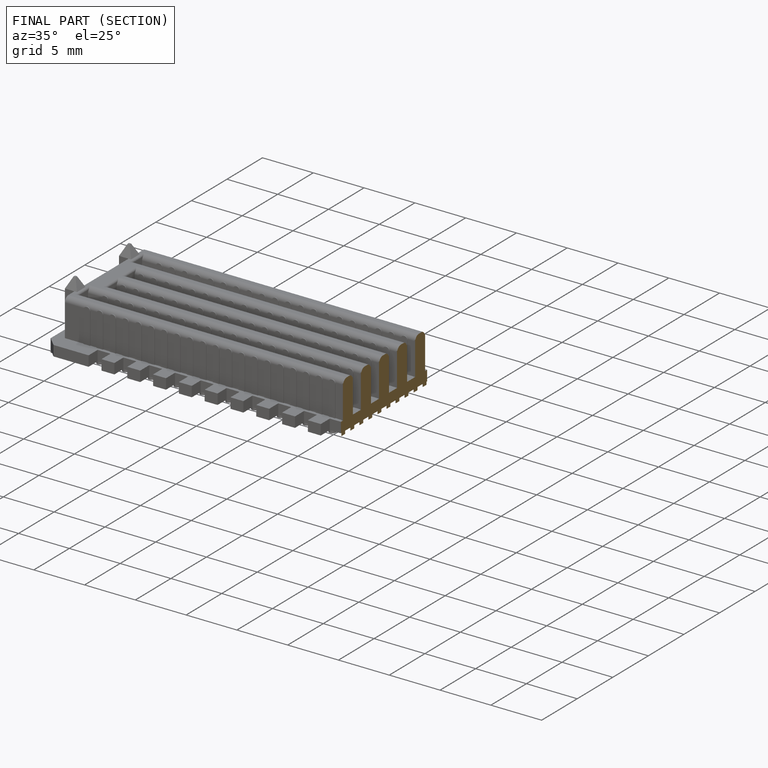
[diagram: finished part — half-section view (interior)]
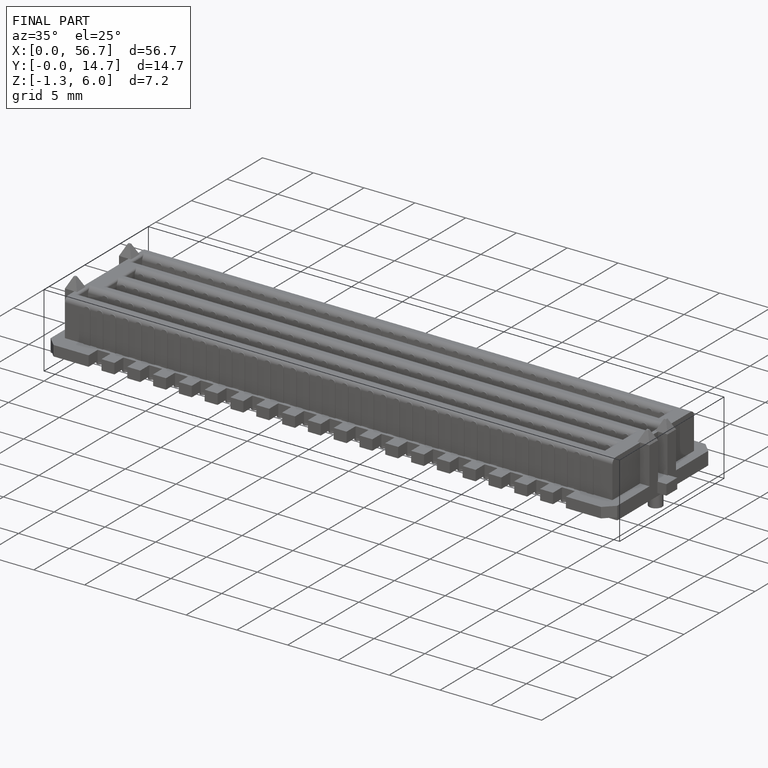
[diagram: finished part — iso view with bounding-box wireframe]
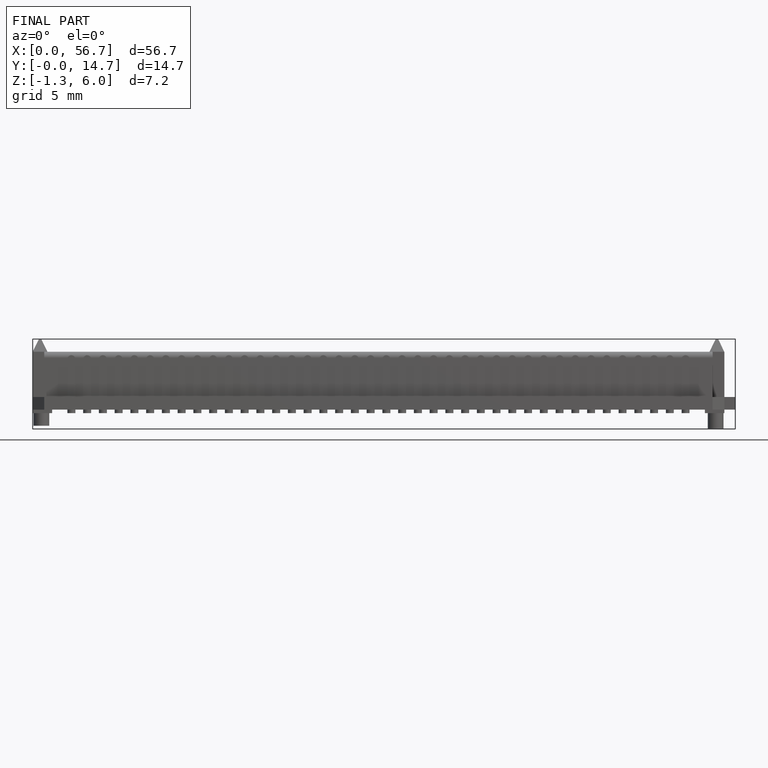
[diagram: finished part — front view with bounding-box wireframe]
